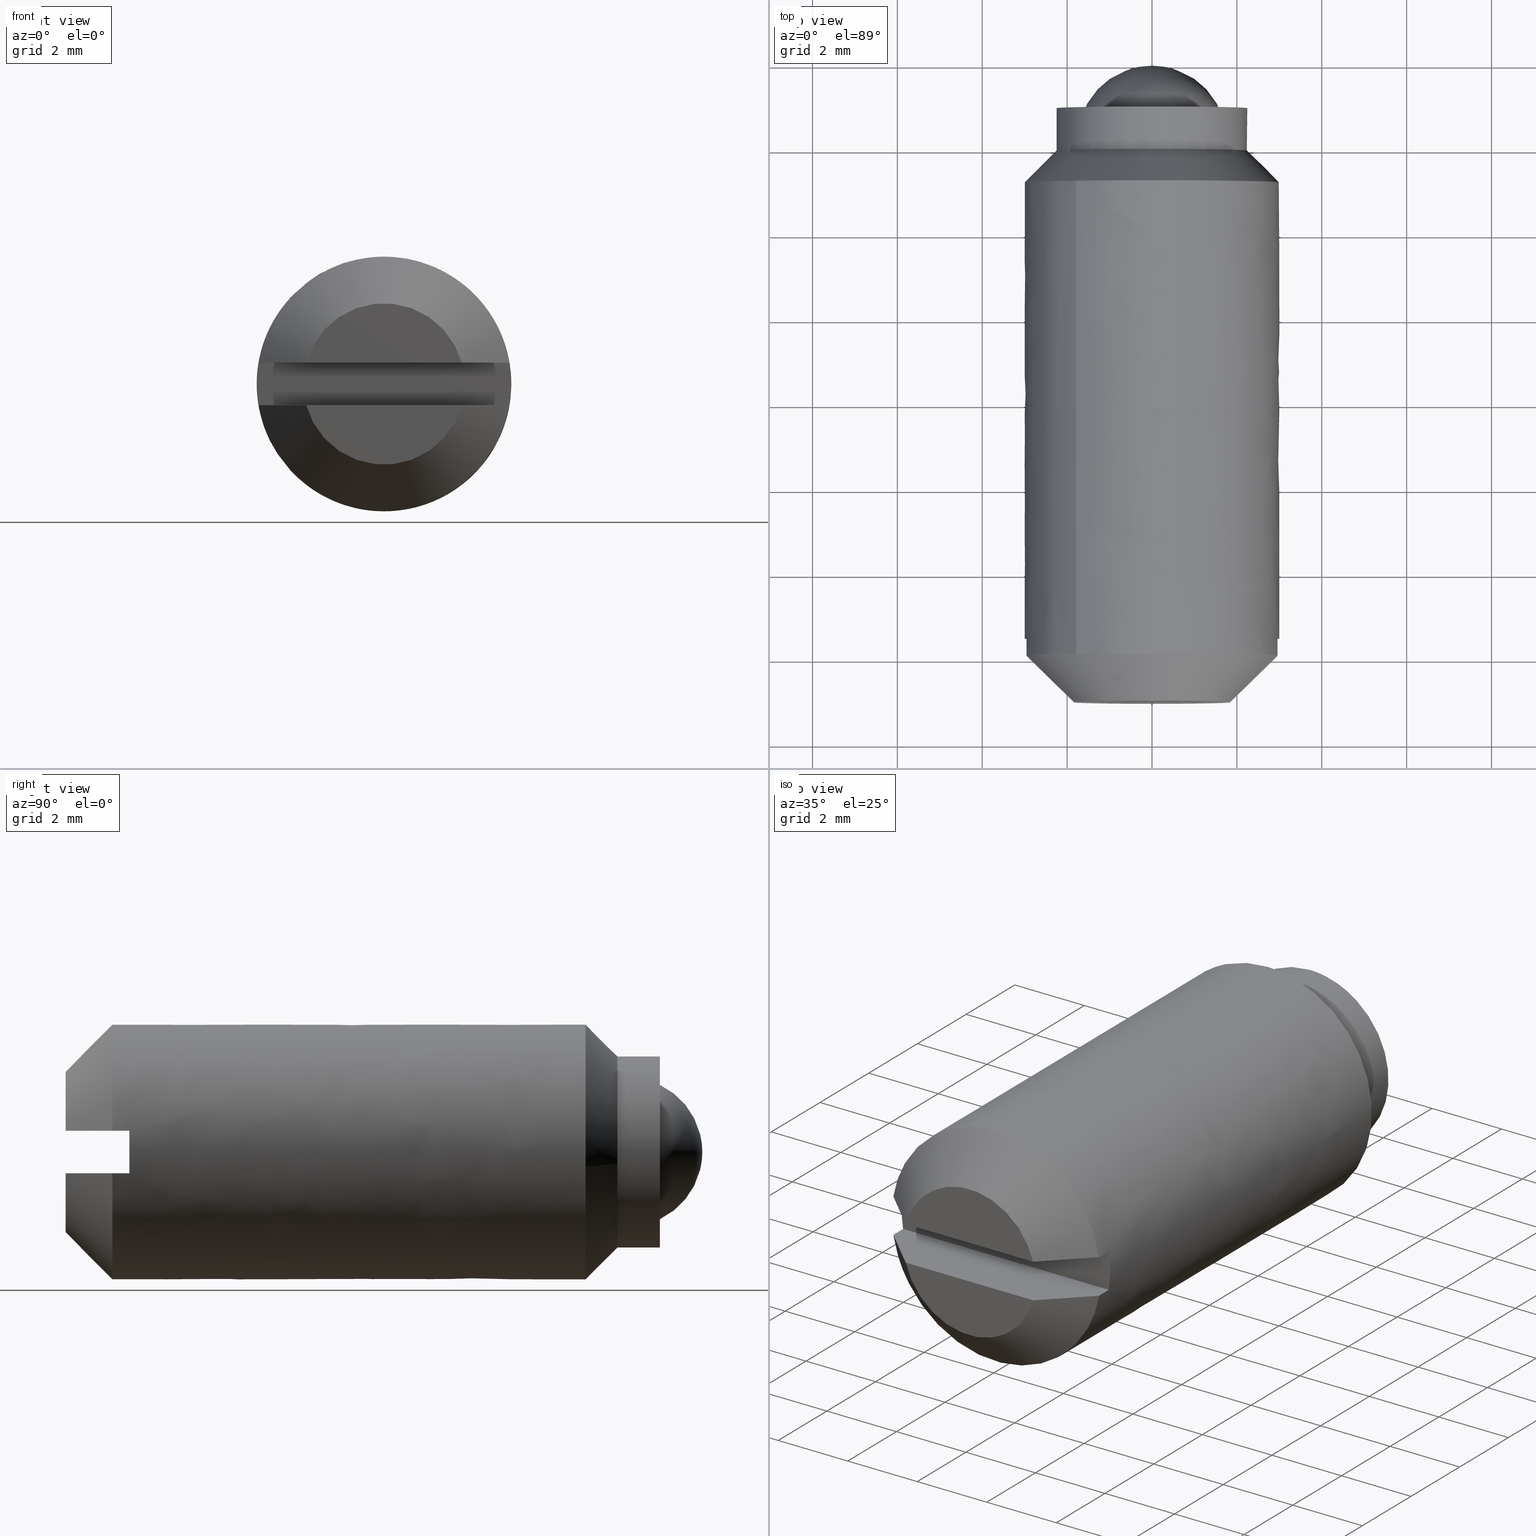
[diagram: canonical four-view strip — front | top / right | iso, engineering-drawing reading convention]
A machine part, canonical four-view strip (front | top / right | iso — engineering-drawing reading convention). The complete STEP part file that produces these views, byte-faithful:
ISO-10303-21;
HEADER;
/****************************************************************
 * Generated by software with PDE/Lib inside                    *
 * PDElib Version 4.4.1-0003, patched  Thursday August 19 11:58 *
 * International Technegroup Inc. (www.iti-oh.com)              *
 ****************************************************************/
FILE_DESCRIPTION((''),'2;1');
FILE_NAME('','2005-07-15T11:27:57',(''),(''),'','CADfix','');
FILE_SCHEMA(('AUTOMOTIVE_DESIGN'));
ENDSEC;
DATA;
#5=APPLICATION_CONTEXT('automotive design');
#6=APPLICATION_PROTOCOL_DEFINITION('Draft International Standard','automotive_design',1998,#5);
#7=PRODUCT_CONTEXT('None',#5,'mechanical');
#8=PRODUCT('body','','None',(#7));
#9=PRODUCT_RELATED_PRODUCT_CATEGORY('part','description',(#8));
#10=PRODUCT_DEFINITION_FORMATION('None','None',#8);
#11=PRODUCT_DEFINITION_CONTEXT('part definition',#5,'design');
#12=PRODUCT_DEFINITION('None','None',#10,#11);
#18=(NAMED_UNIT(*)PLANE_ANGLE_UNIT()SI_UNIT($,.RADIAN.));
#19=DIMENSIONAL_EXPONENTS(0.0,0.0,0.0,0.0,0.0,0.0,0.0);
#20=PLANE_ANGLE_MEASURE_WITH_UNIT(PLANE_ANGLE_MEASURE(0.017453292500000),#18);
#24=(CONVERSION_BASED_UNIT('DEGREE',#20)NAMED_UNIT(#19)PLANE_ANGLE_UNIT());
#28=(NAMED_UNIT(*)SI_UNIT($,.STERADIAN.)SOLID_ANGLE_UNIT());
#32=(LENGTH_UNIT()NAMED_UNIT(*)SI_UNIT(.MILLI.,.METRE.));
#34=UNCERTAINTY_MEASURE_WITH_UNIT(LENGTH_MEASURE(0.001000000000000),#32,'DISTANCE_ACCURACY_VALUE','');
#36=(GEOMETRIC_REPRESENTATION_CONTEXT(3)GLOBAL_UNCERTAINTY_ASSIGNED_CONTEXT((#34))GLOBAL_UNIT_ASSIGNED_CONTEXT((#24,#28,#32))REPRESENTATION_CONTEXT('None','None'));
#37=AXIS2_PLACEMENT_3D('',#38,#39,#40);
#38=CARTESIAN_POINT('',(0.0,0.0,0.0));
#39=DIRECTION('',(0.0,0.0,1.0));
#40=DIRECTION('',(1.0,0.0,0.0));
#41=ADVANCED_BREP_SHAPE_REPRESENTATION('',(#37,#1005,#1216),#36);
#42=PRODUCT_DEFINITION_SHAPE('','',#12);
#43=SHAPE_DEFINITION_REPRESENTATION(#42,#41);
#44=CARTESIAN_POINT('',(-1.737766671136416,-0.893750000000000,0.206559910649327));
#45=CARTESIAN_POINT('',(-1.743678327035060,-0.893750000000000,0.156825775116461));
#46=CARTESIAN_POINT('',(-1.746735897238267,-0.893750000000000,0.106834944186000));
#47=CARTESIAN_POINT('',(-1.853570841424267,-0.893750000000000,-1.639900953052267));
#48=CARTESIAN_POINT('',(-0.106834944186000,-0.893750000000000,-1.746735897238267));
#49=CARTESIAN_POINT('',(1.639900953052267,-0.893750000000000,-1.853570841424267));
#50=CARTESIAN_POINT('',(1.746735897238267,-0.893750000000000,-0.106834944186000));
#51=CARTESIAN_POINT('',(-1.737766671136416,-5.358906250000004,0.206559910649327));
#52=CARTESIAN_POINT('',(-1.743678327035060,-5.358906250000002,0.156825775116461));
#53=CARTESIAN_POINT('',(-1.746735897238267,-5.358906250000001,0.106834944186000));
#54=CARTESIAN_POINT('',(-1.853570841424267,-5.358906250000001,-1.639900953052267));
#55=CARTESIAN_POINT('',(-0.106834944186000,-5.358906250000001,-1.746735897238267));
#56=CARTESIAN_POINT('',(1.639900953052267,-5.358906250000001,-1.853570841424267));
#57=CARTESIAN_POINT('',(1.746735897238267,-5.358906250000001,-0.106834944186000));
#65=(BOUNDED_SURFACE()B_SPLINE_SURFACE(2,1,((#44,#51),(#45,#52),(#46,#53),(#47,#54),(#48,#55),(#49,#56),(#50,#57)),.UNSPECIFIED.,.F.,.F.,.U.)B_SPLINE_SURFACE_WITH_KNOTS((3,2,2,3),(2,2),(3.078760800517997,3.141592653589793,4.712388980384690,6.283185307179586),(0.0,4.465156250000002),.UNSPECIFIED.)GEOMETRIC_REPRESENTATION_ITEM()RATIONAL_B_SPLINE_SURFACE(((0.977505800795127,0.977505800795127),(0.988284271247462,0.988284271247462),(1.0,1.0),(0.707106781186548,0.707106781186548),(1.0,1.0),(0.707106781186548,0.707106781186548),(1.0,1.0)))REPRESENTATION_ITEM('')SURFACE());
#66=CARTESIAN_POINT('',(-1.737766671135633,-5.250000000000000,0.206559910655916));
#67=VERTEX_POINT('',#66);
#68=CARTESIAN_POINT('',(0.0,-5.250000000000000,-1.750000000000000));
#69=VERTEX_POINT('',#68);
#70=CARTESIAN_POINT('',(-1.737766671135633,-5.250000000000000,0.206559910655916));
#71=CARTESIAN_POINT('',(-1.750000000000000,-5.250000000000001,0.103642209397501));
#72=CARTESIAN_POINT('',(-1.750000000000000,-5.250000000000000,0.0));
#73=CARTESIAN_POINT('',(-1.750000000000000,-5.249999999999999,-1.750000000000000));
#74=CARTESIAN_POINT('',(0.0,-5.250000000000000,-1.750000000000000));
#82=(BOUNDED_CURVE()B_SPLINE_CURVE(2,(#70,#71,#72,#73,#74),.UNSPECIFIED.,.F.,.U.)B_SPLINE_CURVE_WITH_KNOTS((3,2,3),(0.229562473514363,0.250000000000000,0.500000000000000),.UNSPECIFIED.)CURVE()GEOMETRIC_REPRESENTATION_ITEM()RATIONAL_B_SPLINE_CURVE((0.956026754185374,0.976055948332146,1.0,0.707106781186547,1.0))REPRESENTATION_ITEM(''));
#83=EDGE_CURVE('',#67,#69,#82,.T.);
#84=ORIENTED_EDGE('',*,*,#83,.T.);
#85=CARTESIAN_POINT('',(1.746736020852408,-5.250000000000009,-0.106832923074280));
#86=VERTEX_POINT('',#85);
#87=CARTESIAN_POINT('',(0.0,-5.250000000000000,-1.750000000000000));
#88=CARTESIAN_POINT('',(1.646237525470331,-5.250000000000000,-1.750000000000000));
#89=CARTESIAN_POINT('',(1.746736020852408,-5.250000000000009,-0.106832923074280));
#97=(BOUNDED_CURVE()B_SPLINE_CURVE(2,(#87,#88,#89),.UNSPECIFIED.,.F.,.U.)B_SPLINE_CURVE_WITH_KNOTS((3,3),(0.500000000000000,0.739333161892294),.UNSPECIFIED.)CURVE()GEOMETRIC_REPRESENTATION_ITEM()RATIONAL_B_SPLINE_CURVE((1.0,0.719603759378259,0.976072469562228))REPRESENTATION_ITEM(''));
#98=EDGE_CURVE('',#69,#86,#97,.T.);
#99=ORIENTED_EDGE('',*,*,#98,.T.);
#100=CARTESIAN_POINT('',(1.746736019324997,-1.000000000000000,-0.106832948048172));
#101=VERTEX_POINT('',#100);
#102=CARTESIAN_POINT('',(1.746736019324997,-1.000000000000000,-0.106832948048172));
#103=CARTESIAN_POINT('',(1.746736020852408,-5.250000000000009,-0.106832923074280));
#104=QUASI_UNIFORM_CURVE('',1,(#102,#103),.UNSPECIFIED.,.F.,.U.);
#105=EDGE_CURVE('',#101,#86,#104,.T.);
#106=ORIENTED_EDGE('',*,*,#105,.F.);
#107=CARTESIAN_POINT('',(0.0,-1.0,-1.750000000000000));
#108=VERTEX_POINT('',#107);
#109=CARTESIAN_POINT('',(0.0,-1.0,-1.750000000000000));
#110=CARTESIAN_POINT('',(1.646237501889333,-1.0,-1.750000000000000));
#111=CARTESIAN_POINT('',(1.746736019324997,-1.000000000000000,-0.106832948048172));
#119=(BOUNDED_CURVE()B_SPLINE_CURVE(2,(#109,#110,#111),.UNSPECIFIED.,.F.,.U.)B_SPLINE_CURVE_WITH_KNOTS((3,3),(0.500000000000000,0.739333159425312),.UNSPECIFIED.)CURVE()GEOMETRIC_REPRESENTATION_ITEM()RATIONAL_B_SPLINE_CURVE((1.0,0.719603762268509,0.976072464275007))REPRESENTATION_ITEM(''));
#120=EDGE_CURVE('',#108,#101,#119,.T.);
#121=ORIENTED_EDGE('',*,*,#120,.F.);
#122=CARTESIAN_POINT('',(-1.737766671135633,-1.000000000000000,0.206559910655916));
#123=VERTEX_POINT('',#122);
#124=CARTESIAN_POINT('',(-1.737766671135633,-1.000000000000000,0.206559910655916));
#125=CARTESIAN_POINT('',(-1.750000000000000,-1.0,0.103642209397501));
#126=CARTESIAN_POINT('',(-1.750000000000000,-1.0,0.0));
#127=CARTESIAN_POINT('',(-1.750000000000000,-1.0,-1.750000000000000));
#128=CARTESIAN_POINT('',(0.0,-1.0,-1.750000000000000));
#136=(BOUNDED_CURVE()B_SPLINE_CURVE(2,(#124,#125,#126,#127,#128),.UNSPECIFIED.,.F.,.U.)B_SPLINE_CURVE_WITH_KNOTS((3,2,3),(0.229562473514363,0.250000000000000,0.500000000000000),.UNSPECIFIED.)CURVE()GEOMETRIC_REPRESENTATION_ITEM()RATIONAL_B_SPLINE_CURVE((0.956026754185374,0.976055948332146,1.0,0.707106781186547,1.0))REPRESENTATION_ITEM(''));
#137=EDGE_CURVE('',#123,#108,#136,.T.);
#138=ORIENTED_EDGE('',*,*,#137,.F.);
#139=CARTESIAN_POINT('',(-1.737766671135633,-1.000000000000000,0.206559910655916));
#140=CARTESIAN_POINT('',(-1.737766671135633,-5.250000000000000,0.206559910655916));
#141=QUASI_UNIFORM_CURVE('',1,(#139,#140),.UNSPECIFIED.,.F.,.U.);
#142=EDGE_CURVE('',#123,#67,#141,.T.);
#143=ORIENTED_EDGE('',*,*,#142,.T.);
#144=EDGE_LOOP('',(#84,#99,#106,#121,#138,#143));
#145=FACE_OUTER_BOUND('',#144,.T.);
#146=ADVANCED_FACE('',(#145),#65,.F.);
#147=CARTESIAN_POINT('',(1.746735897238267,-0.893750000000000,-0.106834944186000));
#148=CARTESIAN_POINT('',(1.853570841424267,-0.893750000000000,1.639900953052267));
#149=CARTESIAN_POINT('',(0.106834944186000,-0.893750000000000,1.746735897238267));
#150=CARTESIAN_POINT('',(-1.542701108969127,-0.893750000000000,1.847625844281923));
#151=CARTESIAN_POINT('',(-1.737766671136416,-0.893750000000000,0.206559910649327));
#152=CARTESIAN_POINT('',(1.746735897238267,-5.358906250000001,-0.106834944186000));
#153=CARTESIAN_POINT('',(1.853570841424267,-5.358906250000001,1.639900953052267));
#154=CARTESIAN_POINT('',(0.106834944186000,-5.358906250000001,1.746735897238267));
#155=CARTESIAN_POINT('',(-1.542701108969127,-5.358906250000000,1.847625844281923));
#156=CARTESIAN_POINT('',(-1.737766671136416,-5.358906250000004,0.206559910649327));
#164=(BOUNDED_SURFACE()B_SPLINE_SURFACE(2,1,((#147,#152),(#148,#153),(#149,#154),(#150,#155),(#151,#156)),.UNSPECIFIED.,.F.,.F.,.U.)B_SPLINE_SURFACE_WITH_KNOTS((3,2,3),(2,2),(0.0,1.570796326794897,3.078760800517997),(0.0,4.465156250000002),.UNSPECIFIED.)GEOMETRIC_REPRESENTATION_ITEM()RATIONAL_B_SPLINE_SURFACE(((1.0,1.0),(0.707106781186548,0.707106781186548),(1.0,1.0),(0.718822509939086,0.718822509939086),(0.977505800795127,0.977505800795127)))REPRESENTATION_ITEM('')SURFACE());
#165=CARTESIAN_POINT('',(0.0,-5.250000000000000,1.750000000000000));
#166=VERTEX_POINT('',#165);
#167=CARTESIAN_POINT('',(0.0,-5.250000000000000,1.750000000000000));
#168=CARTESIAN_POINT('',(-1.554305420403023,-5.250000000000000,1.750000000000000));
#169=CARTESIAN_POINT('',(-1.737766671135633,-5.250000000000001,0.206559910655916));
#177=(BOUNDED_CURVE()B_SPLINE_CURVE(2,(#167,#168,#169),.UNSPECIFIED.,.F.,.U.)B_SPLINE_CURVE_WITH_KNOTS((3,3),(0.0,0.229562473514363),.UNSPECIFIED.)CURVE()GEOMETRIC_REPRESENTATION_ITEM()RATIONAL_B_SPLINE_CURVE((1.0,0.731050832854402,0.956026754185374))REPRESENTATION_ITEM(''));
#178=EDGE_CURVE('',#166,#67,#177,.T.);
#179=ORIENTED_EDGE('',*,*,#178,.T.);
#180=ORIENTED_EDGE('',*,*,#142,.F.);
#181=CARTESIAN_POINT('',(0.0,-1.0,1.750000000000000));
#182=VERTEX_POINT('',#181);
#183=CARTESIAN_POINT('',(0.0,-1.0,1.750000000000000));
#184=CARTESIAN_POINT('',(-1.554305420403023,-1.0,1.750000000000000));
#185=CARTESIAN_POINT('',(-1.737766671135633,-1.000000000000000,0.206559910655916));
#193=(BOUNDED_CURVE()B_SPLINE_CURVE(2,(#183,#184,#185),.UNSPECIFIED.,.F.,.U.)B_SPLINE_CURVE_WITH_KNOTS((3,3),(0.0,0.229562473514363),.UNSPECIFIED.)CURVE()GEOMETRIC_REPRESENTATION_ITEM()RATIONAL_B_SPLINE_CURVE((1.0,0.731050832854402,0.956026754185374))REPRESENTATION_ITEM(''));
#194=EDGE_CURVE('',#182,#123,#193,.T.);
#195=ORIENTED_EDGE('',*,*,#194,.F.);
#196=CARTESIAN_POINT('',(1.746736019324997,-1.000000000000000,-0.106832948048172));
#197=CARTESIAN_POINT('',(1.750000000000000,-1.0,-0.053466334905216));
#198=CARTESIAN_POINT('',(1.750000000000000,-1.0,0.0));
#199=CARTESIAN_POINT('',(1.750000000000000,-1.0,1.750000000000000));
#200=CARTESIAN_POINT('',(0.0,-1.0,1.750000000000000));
#208=(BOUNDED_CURVE()B_SPLINE_CURVE(2,(#196,#197,#198,#199,#200),.UNSPECIFIED.,.F.,.U.)B_SPLINE_CURVE_WITH_KNOTS((3,2,3),(0.739333159425312,0.750000000000000,1.0),.UNSPECIFIED.)CURVE()GEOMETRIC_REPRESENTATION_ITEM()RATIONAL_B_SPLINE_CURVE((0.976072464275007,0.987503018918039,1.0,0.707106781186547,1.0))REPRESENTATION_ITEM(''));
#209=EDGE_CURVE('',#101,#182,#208,.T.);
#210=ORIENTED_EDGE('',*,*,#209,.F.);
#211=ORIENTED_EDGE('',*,*,#105,.T.);
#212=CARTESIAN_POINT('',(1.746736020852408,-5.250000000000009,-0.106832923074280));
#213=CARTESIAN_POINT('',(1.750000000000000,-5.250000000000000,-0.053466322383260));
#214=CARTESIAN_POINT('',(1.750000000000000,-5.250000000000000,0.0));
#215=CARTESIAN_POINT('',(1.750000000000000,-5.249999999999999,1.750000000000000));
#216=CARTESIAN_POINT('',(0.0,-5.250000000000000,1.750000000000000));
#224=(BOUNDED_CURVE()B_SPLINE_CURVE(2,(#212,#213,#214,#215,#216),.UNSPECIFIED.,.F.,.U.)B_SPLINE_CURVE_WITH_KNOTS((3,2,3),(0.739333161892294,0.750000000000000,1.0),.UNSPECIFIED.)CURVE()GEOMETRIC_REPRESENTATION_ITEM()RATIONAL_B_SPLINE_CURVE((0.976072469562228,0.987503021808288,1.0,0.707106781186547,1.0))REPRESENTATION_ITEM(''));
#225=EDGE_CURVE('',#86,#166,#224,.T.);
#226=ORIENTED_EDGE('',*,*,#225,.T.);
#227=EDGE_LOOP('',(#179,#180,#195,#210,#211,#226));
#228=FACE_OUTER_BOUND('',#227,.T.);
#229=ADVANCED_FACE('',(#228),#164,.F.);
#230=CARTESIAN_POINT('',(0.810907582264825,-0.975000000000000,2.098898462854327));
#231=CARTESIAN_POINT('',(0.801012499757938,-0.975000000000000,2.102615081700397));
#232=CARTESIAN_POINT('',(0.474726266359669,-0.975000000000000,2.225169043571588));
#233=CARTESIAN_POINT('',(0.137359213953428,-0.975000000000000,2.245803296449199));
#234=CARTESIAN_POINT('',(-2.108444082495772,-0.975000000000000,2.383162510402627));
#235=CARTESIAN_POINT('',(-2.246385166074939,-0.975000000000000,0.127845729666670));
#236=CARTESIAN_POINT('',(-2.246964997314255,-0.975000000000000,0.118365572703307));
#237=CARTESIAN_POINT('',(0.810907582264825,-2.025625000000000,2.098898462854327));
#238=CARTESIAN_POINT('',(0.801012499757938,-2.025625000000000,2.102615081700397));
#239=CARTESIAN_POINT('',(0.474726266359669,-2.025625000000000,2.225169043571588));
#240=CARTESIAN_POINT('',(0.137359213953428,-2.025625000000000,2.245803296449199));
#241=CARTESIAN_POINT('',(-2.108444082495772,-2.025624999999999,2.383162510402627));
#242=CARTESIAN_POINT('',(-2.246385166074939,-2.025624999999999,0.127845729666670));
#243=CARTESIAN_POINT('',(-2.246964997314255,-2.025624999999999,0.118365572703307));
#251=(BOUNDED_SURFACE()B_SPLINE_SURFACE(2,1,((#230,#237),(#231,#238),(#232,#239),(#233,#240),(#234,#241),(#235,#242),(#236,#243)),.UNSPECIFIED.,.F.,.F.,.U.)B_SPLINE_SURFACE_WITH_KNOTS((3,1,2,1,3),(2,2),(0.0,0.022367556049708,0.767951968321279,4.495874029679133,4.518246421630407),(0.0,1.0),.UNSPECIFIED.)GEOMETRIC_REPRESENTATION_ITEM()RATIONAL_B_SPLINE_SURFACE(((0.904165336571519,0.904165336571519),(0.905219753275607,0.905219753275607),(0.941421356237309,0.941421356237309),(1.0,1.0),(0.707106781186548,0.707106781186548),(1.001757741117790,1.001757741117790),(1.003515482235580,1.003515482235580)))REPRESENTATION_ITEM('')SURFACE());
#252=CARTESIAN_POINT('',(0.791140442382787,-2.0,2.106323052246821));
#253=VERTEX_POINT('',#252);
#254=CARTESIAN_POINT('',(0.0,-2.0,2.249999999999999));
#255=VERTEX_POINT('',#254);
#256=CARTESIAN_POINT('',(0.791140442382787,-2.000000000000000,2.106323052246821));
#257=CARTESIAN_POINT('',(0.408616618652142,-2.000000000000000,2.249999999999999));
#258=CARTESIAN_POINT('',(0.0,-2.0,2.249999999999999));
#266=(BOUNDED_CURVE()B_SPLINE_CURVE(2,(#256,#257,#258),.UNSPECIFIED.,.F.,.U.)B_SPLINE_CURVE_WITH_KNOTS((3,3),(0.440284170898647,0.500000000000000),.UNSPECIFIED.)CURVE()GEOMETRIC_REPRESENTATION_ITEM()RATIONAL_B_SPLINE_CURVE((0.893499554635445,0.930038554401563,1.0))REPRESENTATION_ITEM(''));
#267=EDGE_CURVE('',#253,#255,#266,.T.);
#268=ORIENTED_EDGE('',*,*,#267,.F.);
#269=CARTESIAN_POINT('',(0.791138014913889,-1.0,2.106323964007289));
#270=VERTEX_POINT('',#269);
#271=CARTESIAN_POINT('',(0.791138014913889,-1.0,2.106323964007289));
#272=CARTESIAN_POINT('',(0.791140442382787,-2.0,2.106323052246821));
#273=QUASI_UNIFORM_CURVE('',1,(#271,#272),.UNSPECIFIED.,.F.,.U.);
#274=EDGE_CURVE('',#270,#253,#273,.T.);
#275=ORIENTED_EDGE('',*,*,#274,.F.);
#276=CARTESIAN_POINT('',(0.0,-1.0,2.249999999999999));
#277=VERTEX_POINT('',#276);
#278=CARTESIAN_POINT('',(0.791138014913889,-1.0,2.106323964007289));
#279=CARTESIAN_POINT('',(0.408615279364903,-1.0,2.250000000000000));
#280=CARTESIAN_POINT('',(0.0,-1.0,2.249999999999999));
#288=(BOUNDED_CURVE()B_SPLINE_CURVE(2,(#278,#279,#280),.UNSPECIFIED.,.F.,.U.)B_SPLINE_CURVE_WITH_KNOTS((3,3),(0.440284352930849,0.500000000000000),.UNSPECIFIED.)CURVE()GEOMETRIC_REPRESENTATION_ITEM()RATIONAL_B_SPLINE_CURVE((0.893499777399960,0.930038767665553,1.0))REPRESENTATION_ITEM(''));
#289=EDGE_CURVE('',#270,#277,#288,.T.);
#290=ORIENTED_EDGE('',*,*,#289,.T.);
#291=CARTESIAN_POINT('',(-2.245803548431797,-1.0,0.137355093950345));
#292=VERTEX_POINT('',#291);
#293=CARTESIAN_POINT('',(0.0,-1.0,2.249999999999999));
#294=CARTESIAN_POINT('',(-2.116592540751148,-1.0,2.249999999999999));
#295=CARTESIAN_POINT('',(-2.245803548431797,-1.0,0.137355093950345));
#303=(BOUNDED_CURVE()B_SPLINE_CURVE(2,(#293,#294,#295),.UNSPECIFIED.,.F.,.U.)B_SPLINE_CURVE_WITH_KNOTS((3,3),(0.500000000000000,0.739333278785040),.UNSPECIFIED.)CURVE()GEOMETRIC_REPRESENTATION_ITEM()RATIONAL_B_SPLINE_CURVE((1.0,0.719603622429889,0.976072720086199))REPRESENTATION_ITEM(''));
#304=EDGE_CURVE('',#277,#292,#303,.T.);
#305=ORIENTED_EDGE('',*,*,#304,.T.);
#306=CARTESIAN_POINT('',(-2.245803296450222,-2.000000000004009,0.137359213967844));
#307=VERTEX_POINT('',#306);
#308=CARTESIAN_POINT('',(-2.245803548431797,-1.0,0.137355093950345));
#309=CARTESIAN_POINT('',(-2.245803296450222,-2.000000000004009,0.137359213967844));
#310=QUASI_UNIFORM_CURVE('',1,(#308,#309),.UNSPECIFIED.,.F.,.U.);
#311=EDGE_CURVE('',#292,#307,#310,.T.);
#312=ORIENTED_EDGE('',*,*,#311,.T.);
#313=CARTESIAN_POINT('',(0.0,-2.0,2.249999999999999));
#314=CARTESIAN_POINT('',(-2.116588650483795,-2.000000000000000,2.250000000000000));
#315=CARTESIAN_POINT('',(-2.245803296450223,-2.000000000004009,0.137359213967844));
#323=(BOUNDED_CURVE()B_SPLINE_CURVE(2,(#313,#314,#315),.UNSPECIFIED.,.F.,.U.)B_SPLINE_CURVE_WITH_KNOTS((3,3),(0.500000000000000,0.739332962237573),.UNSPECIFIED.)CURVE()GEOMETRIC_REPRESENTATION_ITEM()RATIONAL_B_SPLINE_CURVE((1.0,0.719603993288315,0.976072041663781))REPRESENTATION_ITEM(''));
#324=EDGE_CURVE('',#255,#307,#323,.T.);
#325=ORIENTED_EDGE('',*,*,#324,.F.);
#326=EDGE_LOOP('',(#268,#275,#290,#305,#312,#325));
#327=FACE_OUTER_BOUND('',#326,.T.);
#328=ADVANCED_FACE('',(#327),#251,.T.);
#329=CARTESIAN_POINT('',(-2.245803296449200,-0.975000000000000,0.137359213953427));
#330=CARTESIAN_POINT('',(-2.383162510402629,-0.975000000000000,-2.108444082495772));
#331=CARTESIAN_POINT('',(-0.137359213953428,-0.975000000000000,-2.245803296449201));
#332=CARTESIAN_POINT('',(2.108444082495772,-0.975000000000000,-2.383162510402629));
#333=CARTESIAN_POINT('',(2.245803296449200,-0.975000000000000,-0.137359213953429));
#334=CARTESIAN_POINT('',(2.347283751456018,-0.975000000000000,1.521831559056896));
#335=CARTESIAN_POINT('',(0.791140442381037,-0.975000000000000,2.106323052247478));
#336=CARTESIAN_POINT('',(-2.245803296449200,-2.025625000000000,0.137359213953427));
#337=CARTESIAN_POINT('',(-2.383162510402629,-2.025624999999999,-2.108444082495772));
#338=CARTESIAN_POINT('',(-0.137359213953428,-2.025625000000000,-2.245803296449201));
#339=CARTESIAN_POINT('',(2.108444082495772,-2.025624999999999,-2.383162510402629));
#340=CARTESIAN_POINT('',(2.245803296449200,-2.025625000000000,-0.137359213953429));
#341=CARTESIAN_POINT('',(2.347283751456018,-2.025624999999999,1.521831559056896));
#342=CARTESIAN_POINT('',(0.791140442381037,-2.025625000000000,2.106323052247478));
#350=(BOUNDED_SURFACE()B_SPLINE_SURFACE(2,1,((#329,#336),(#330,#337),(#331,#338),(#332,#339),(#333,#340),(#334,#341),(#335,#342)),.UNSPECIFIED.,.F.,.F.,.U.)B_SPLINE_SURFACE_WITH_KNOTS((3,2,2,3),(2,2),(0.0,3.727922061357854,7.455844122715709,10.438181771801990),(0.0,1.0),.UNSPECIFIED.)GEOMETRIC_REPRESENTATION_ITEM()RATIONAL_B_SPLINE_SURFACE(((1.0,1.0),(0.707106781186548,0.707106781186548),(1.0,1.0),(0.707106781186548,0.707106781186548),(1.0,1.0),(0.765685424949238,0.765685424949238),(0.906274169979695,0.906274169979695)))REPRESENTATION_ITEM('')SURFACE());
#351=CARTESIAN_POINT('',(2.234271434318409,-2.000000000002305,-0.265577027995891));
#352=VERTEX_POINT('',#351);
#353=CARTESIAN_POINT('',(2.234271434318409,-2.000000000002306,-0.265577027995891));
#354=CARTESIAN_POINT('',(2.250000000000000,-2.000000000000000,-0.133254269234900));
#355=CARTESIAN_POINT('',(2.250000000000000,-2.0,-9.796851E-016));
#356=CARTESIAN_POINT('',(2.250000000000000,-2.000000000000000,1.558371590309681));
#357=CARTESIAN_POINT('',(0.791140442382787,-2.0,2.106323052246820));
#365=(BOUNDED_CURVE()B_SPLINE_CURVE(2,(#353,#354,#355,#356,#357),.UNSPECIFIED.,.F.,.U.)B_SPLINE_CURVE_WITH_KNOTS((3,2,3),(0.229562473512934,0.250000000000000,0.440284170898647),.UNSPECIFIED.)CURVE()GEOMETRIC_REPRESENTATION_ITEM()RATIONAL_B_SPLINE_CURVE((0.956026754182574,0.976055948330473,1.0,0.777068226784984,0.893499554635445))REPRESENTATION_ITEM(''));
#366=EDGE_CURVE('',#352,#253,#365,.T.);
#367=ORIENTED_EDGE('',*,*,#366,.F.);
#368=CARTESIAN_POINT('',(0.0,-2.0,-2.250000000000001));
#369=VERTEX_POINT('',#368);
#370=CARTESIAN_POINT('',(0.0,-2.0,-2.250000000000001));
#371=CARTESIAN_POINT('',(1.998392683358309,-2.000000000000000,-2.250000000000001));
#372=CARTESIAN_POINT('',(2.234271434318410,-2.000000000002305,-0.265577027995891));
#380=(BOUNDED_CURVE()B_SPLINE_CURVE(2,(#370,#371,#372),.UNSPECIFIED.,.F.,.U.)B_SPLINE_CURVE_WITH_KNOTS((3,3),(0.0,0.229562473512934),.UNSPECIFIED.)CURVE()GEOMETRIC_REPRESENTATION_ITEM()RATIONAL_B_SPLINE_CURVE((1.0,0.731050832856075,0.956026754182574))REPRESENTATION_ITEM(''));
#381=EDGE_CURVE('',#369,#352,#380,.T.);
#382=ORIENTED_EDGE('',*,*,#381,.F.);
#383=CARTESIAN_POINT('',(-2.245803296450222,-2.000000000004009,0.137359213967844));
#384=CARTESIAN_POINT('',(-2.250000000000000,-2.000000000000000,0.068743717450506));
#385=CARTESIAN_POINT('',(-2.250000000000000,-2.0,-9.796851E-016));
#386=CARTESIAN_POINT('',(-2.250000000000000,-2.0,-2.250000000000000));
#387=CARTESIAN_POINT('',(0.0,-2.0,-2.250000000000001));
#395=(BOUNDED_CURVE()B_SPLINE_CURVE(2,(#383,#384,#385,#386,#387),.UNSPECIFIED.,.F.,.U.)B_SPLINE_CURVE_WITH_KNOTS((3,2,3),(0.739332962237573,0.750000000000000,1.0),.UNSPECIFIED.)CURVE()GEOMETRIC_REPRESENTATION_ITEM()RATIONAL_B_SPLINE_CURVE((0.976072041663782,0.987502787898233,1.0,0.707106781186547,1.0))REPRESENTATION_ITEM(''));
#396=EDGE_CURVE('',#307,#369,#395,.T.);
#397=ORIENTED_EDGE('',*,*,#396,.F.);
#398=ORIENTED_EDGE('',*,*,#311,.F.);
#399=CARTESIAN_POINT('',(0.0,-1.0,-2.250000000000001));
#400=VERTEX_POINT('',#399);
#401=CARTESIAN_POINT('',(-2.245803548431797,-1.0,0.137355093950345));
#402=CARTESIAN_POINT('',(-2.250000000000000,-1.0,0.068741651644528));
#403=CARTESIAN_POINT('',(-2.250000000000000,-1.0,-9.796851E-016));
#404=CARTESIAN_POINT('',(-2.250000000000000,-1.0,-2.250000000000000));
#405=CARTESIAN_POINT('',(0.0,-1.0,-2.250000000000001));
#413=(BOUNDED_CURVE()B_SPLINE_CURVE(2,(#401,#402,#403,#404,#405),.UNSPECIFIED.,.F.,.U.)B_SPLINE_CURVE_WITH_KNOTS((3,2,3),(0.739333278785040,0.750000000000000,1.0),.UNSPECIFIED.)CURVE()GEOMETRIC_REPRESENTATION_ITEM()RATIONAL_B_SPLINE_CURVE((0.976072720086199,0.987503158756658,1.0,0.707106781186547,1.0))REPRESENTATION_ITEM(''));
#414=EDGE_CURVE('',#292,#400,#413,.T.);
#415=ORIENTED_EDGE('',*,*,#414,.T.);
#416=CARTESIAN_POINT('',(0.0,-1.0,-2.250000000000001));
#417=CARTESIAN_POINT('',(2.250000000000000,-1.0,-2.250000000000000));
#418=CARTESIAN_POINT('',(2.250000000000000,-1.0,-9.796851E-016));
#419=CARTESIAN_POINT('',(2.250000000000000,-1.0,1.558373508790894));
#420=CARTESIAN_POINT('',(0.791138014913889,-1.0,2.106323964007289));
#428=(BOUNDED_CURVE()B_SPLINE_CURVE(2,(#416,#417,#418,#419,#420),.UNSPECIFIED.,.F.,.U.)B_SPLINE_CURVE_WITH_KNOTS((3,2,3),(0.0,0.250000000000000,0.440284352930849),.UNSPECIFIED.)CURVE()GEOMETRIC_REPRESENTATION_ITEM()RATIONAL_B_SPLINE_CURVE((1.0,0.707106781186547,1.0,0.777068013520994,0.893499777399960))REPRESENTATION_ITEM(''));
#429=EDGE_CURVE('',#400,#270,#428,.T.);
#430=ORIENTED_EDGE('',*,*,#429,.T.);
#431=ORIENTED_EDGE('',*,*,#274,.T.);
#432=EDGE_LOOP('',(#367,#382,#397,#398,#415,#430,#431));
#433=FACE_OUTER_BOUND('',#432,.T.);
#434=ADVANCED_FACE('',(#433),#350,.T.);
#435=CARTESIAN_POINT('',(2.215652505698930,-1.981250000000000,-0.263363886077893));
#436=CARTESIAN_POINT('',(2.223189866969700,-1.981250000000000,-0.199952863273489));
#437=CARTESIAN_POINT('',(2.227088268978790,-1.981250000000000,-0.136214553837151));
#438=CARTESIAN_POINT('',(2.363302822815940,-1.981250000000000,2.090873715141639));
#439=CARTESIAN_POINT('',(0.136214553837150,-1.981250000000000,2.227088268978789));
#440=CARTESIAN_POINT('',(-2.090873715141639,-1.981250000000000,2.363302822815939));
#441=CARTESIAN_POINT('',(-2.227088268978790,-1.981250000000000,0.136214553837149));
#442=CARTESIAN_POINT('',(2.998112980925802,-2.769218750000000,-0.356371174417586));
#443=CARTESIAN_POINT('',(3.008312170830221,-2.769218750000001,-0.270566468979945));
#444=CARTESIAN_POINT('',(3.013587298422772,-2.769218750000000,-0.184318895223758));
#445=CARTESIAN_POINT('',(3.197906193646529,-2.769218750000000,2.829268403199014));
#446=CARTESIAN_POINT('',(0.184318895223757,-2.769218750000000,3.013587298422771));
#447=CARTESIAN_POINT('',(-2.829268403199015,-2.769218750000000,3.197906193646527));
#448=CARTESIAN_POINT('',(-3.013587298422772,-2.769218750000000,0.184318895223756));
#456=(BOUNDED_SURFACE()B_SPLINE_SURFACE(2,1,((#435,#442),(#436,#443),(#437,#444),(#438,#445),(#439,#446),(#440,#447),(#441,#448)),.UNSPECIFIED.,.F.,.F.,.U.)B_SPLINE_SURFACE_WITH_KNOTS((3,2,2,3),(2,2),(0.0,0.200096216643383,5.202501632727957,10.204907048812530),(0.0,1.0),.UNSPECIFIED.)GEOMETRIC_REPRESENTATION_ITEM()RATIONAL_B_SPLINE_SURFACE(((0.977505800795127,0.977505800795127),(0.988284271247462,0.988284271247462),(1.0,1.0),(0.707106781186548,0.707106781186548),(1.0,1.0),(0.707106781186548,0.707106781186548),(1.0,1.0)))REPRESENTATION_ITEM('')SURFACE());
#457=ORIENTED_EDGE('',*,*,#366,.T.);
#458=ORIENTED_EDGE('',*,*,#267,.T.);
#459=ORIENTED_EDGE('',*,*,#324,.T.);
#460=CARTESIAN_POINT('',(-2.994404395267101,-2.750000000002790,0.183145618625737));
#461=VERTEX_POINT('',#460);
#462=CARTESIAN_POINT('',(-2.245803296450222,-2.000000000004009,0.137359213967844));
#463=CARTESIAN_POINT('',(-2.994404395267101,-2.750000000002790,0.183145618625737));
#464=QUASI_UNIFORM_CURVE('',1,(#462,#463),.UNSPECIFIED.,.F.,.U.);
#465=EDGE_CURVE('',#307,#461,#464,.T.);
#466=ORIENTED_EDGE('',*,*,#465,.T.);
#467=CARTESIAN_POINT('',(-1.784467472697592,-2.750000000000000,2.411571238608357));
#468=VERTEX_POINT('',#467);
#469=CARTESIAN_POINT('',(-1.784467472697592,-2.750000000000000,2.411571238608356));
#470=CARTESIAN_POINT('',(-2.909002149701276,-2.750000000000000,1.579459990594403));
#471=CARTESIAN_POINT('',(-2.994404395267101,-2.750000000002789,0.183145618625737));
#479=(BOUNDED_CURVE()B_SPLINE_CURVE(2,(#469,#470,#471),.UNSPECIFIED.,.F.,.U.)B_SPLINE_CURVE_WITH_KNOTS((3,3),(0.602574061870398,0.739332962239549),.UNSPECIFIED.)CURVE()GEOMETRIC_REPRESENTATION_ITEM()RATIONAL_B_SPLINE_CURVE((0.858267075351934,0.829521863421190,0.976072041668018))REPRESENTATION_ITEM(''));
#480=EDGE_CURVE('',#468,#461,#479,.T.);
#481=ORIENTED_EDGE('',*,*,#480,.F.);
#482=CARTESIAN_POINT('',(0.0,-2.750000000000000,2.999999999999999));
#483=VERTEX_POINT('',#482);
#484=CARTESIAN_POINT('',(0.0,-2.750000000000000,2.999999999999999));
#485=CARTESIAN_POINT('',(-0.989251029331300,-2.750000000000000,2.999999999999999));
#486=CARTESIAN_POINT('',(-1.784467472697592,-2.750000000000000,2.411571238608356));
#494=(BOUNDED_CURVE()B_SPLINE_CURVE(2,(#484,#485,#486),.UNSPECIFIED.,.F.,.U.)B_SPLINE_CURVE_WITH_KNOTS((3,3),(0.500000000000000,0.602574061870398),.UNSPECIFIED.)CURVE()GEOMETRIC_REPRESENTATION_ITEM()RATIONAL_B_SPLINE_CURVE((1.0,0.879827011408036,0.858267075351934))REPRESENTATION_ITEM(''));
#495=EDGE_CURVE('',#483,#468,#494,.T.);
#496=ORIENTED_EDGE('',*,*,#495,.F.);
#497=CARTESIAN_POINT('',(2.979028579091096,-2.750000000001402,-0.354102703981332));
#498=VERTEX_POINT('',#497);
#499=CARTESIAN_POINT('',(2.979028579091097,-2.750000000001402,-0.354102703981332));
#500=CARTESIAN_POINT('',(3.000000000000001,-2.750000000000000,-0.177672358966736));
#501=CARTESIAN_POINT('',(3.0,-2.750000000000000,-9.796851E-016));
#502=CARTESIAN_POINT('',(3.0,-2.750000000000000,2.999999999999999));
#503=CARTESIAN_POINT('',(0.0,-2.750000000000000,2.999999999999999));
#511=(BOUNDED_CURVE()B_SPLINE_CURVE(2,(#499,#500,#501,#502,#503),.UNSPECIFIED.,.F.,.U.)B_SPLINE_CURVE_WITH_KNOTS((3,2,3),(0.229562473514409,0.250000000000000,0.500000000000000),.UNSPECIFIED.)CURVE()GEOMETRIC_REPRESENTATION_ITEM()RATIONAL_B_SPLINE_CURVE((0.956026754185464,0.976055948332200,1.0,0.707106781186548,1.0))REPRESENTATION_ITEM(''));
#512=EDGE_CURVE('',#498,#483,#511,.T.);
#513=ORIENTED_EDGE('',*,*,#512,.F.);
#514=CARTESIAN_POINT('',(2.234271434318409,-2.000000000002305,-0.265577027995891));
#515=CARTESIAN_POINT('',(2.979028579091096,-2.750000000001402,-0.354102703981332));
#516=QUASI_UNIFORM_CURVE('',1,(#514,#515),.UNSPECIFIED.,.F.,.U.);
#517=EDGE_CURVE('',#352,#498,#516,.T.);
#518=ORIENTED_EDGE('',*,*,#517,.F.);
#519=EDGE_LOOP('',(#457,#458,#459,#466,#481,#496,#513,#518));
#520=FACE_OUTER_BOUND('',#519,.T.);
#521=ADVANCED_FACE('',(#520),#456,.T.);
#522=CARTESIAN_POINT('',(-2.227088268978790,-1.981250000000000,0.136214553837149));
#523=CARTESIAN_POINT('',(-2.363302822815940,-1.981250000000000,-2.090873715141641));
#524=CARTESIAN_POINT('',(-0.136214553837150,-1.981250000000000,-2.227088268978791));
#525=CARTESIAN_POINT('',(1.966943913935636,-1.981250000000001,-2.355722951459453));
#526=CARTESIAN_POINT('',(2.215652505698930,-1.981250000000000,-0.263363886077893));
#527=CARTESIAN_POINT('',(-3.013587298422772,-2.769218750000000,0.184318895223756));
#528=CARTESIAN_POINT('',(-3.197906193646529,-2.769218750000000,-2.829268403199017));
#529=CARTESIAN_POINT('',(-0.184318895223757,-2.769218750000000,-3.013587298422773));
#530=CARTESIAN_POINT('',(2.661572636483076,-2.769218750000001,-3.187649481166037));
#531=CARTESIAN_POINT('',(2.998112980925802,-2.769218750000000,-0.356371174417586));
#539=(BOUNDED_SURFACE()B_SPLINE_SURFACE(2,1,((#522,#527),(#523,#528),(#524,#529),(#525,#530),(#526,#531)),.UNSPECIFIED.,.F.,.F.,.U.)B_SPLINE_SURFACE_WITH_KNOTS((3,2,3),(2,2),(0.0,5.002405416084574,9.804714615525764),(0.0,1.0),.UNSPECIFIED.)GEOMETRIC_REPRESENTATION_ITEM()RATIONAL_B_SPLINE_SURFACE(((1.0,1.0),(0.707106781186548,0.707106781186548),(1.0,1.0),(0.718822509939086,0.718822509939086),(0.977505800795127,0.977505800795127)))REPRESENTATION_ITEM('')SURFACE());
#540=ORIENTED_EDGE('',*,*,#381,.T.);
#541=ORIENTED_EDGE('',*,*,#517,.T.);
#542=CARTESIAN_POINT('',(0.0,-2.750000000000000,-3.000000000000001));
#543=VERTEX_POINT('',#542);
#544=CARTESIAN_POINT('',(0.0,-2.750000000000000,-3.000000000000001));
#545=CARTESIAN_POINT('',(2.664523577834485,-2.750000000000000,-3.000000000000001));
#546=CARTESIAN_POINT('',(2.979028579091097,-2.750000000001402,-0.354102703981332));
#554=(BOUNDED_CURVE()B_SPLINE_CURVE(2,(#544,#545,#546),.UNSPECIFIED.,.F.,.U.)B_SPLINE_CURVE_WITH_KNOTS((3,3),(0.0,0.229562473514409),.UNSPECIFIED.)CURVE()GEOMETRIC_REPRESENTATION_ITEM()RATIONAL_B_SPLINE_CURVE((1.0,0.731050832854348,0.956026754185464))REPRESENTATION_ITEM(''));
#555=EDGE_CURVE('',#543,#498,#554,.T.);
#556=ORIENTED_EDGE('',*,*,#555,.F.);
#557=CARTESIAN_POINT('',(-2.509681558042595,-2.749999999999988,-1.643623581365348));
#558=VERTEX_POINT('',#557);
#559=CARTESIAN_POINT('',(-2.509681558042595,-2.749999999999987,-1.643623581365348));
#560=CARTESIAN_POINT('',(-1.621373253695192,-2.750000000000000,-3.000000000000002));
#561=CARTESIAN_POINT('',(0.0,-2.750000000000000,-3.000000000000001));
#569=(BOUNDED_CURVE()B_SPLINE_CURVE(2,(#559,#560,#561),.UNSPECIFIED.,.F.,.U.)B_SPLINE_CURVE_WITH_KNOTS((3,3),(0.843871112190330,1.0),.UNSPECIFIED.)CURVE()GEOMETRIC_REPRESENTATION_ITEM()RATIONAL_B_SPLINE_CURVE((0.862635495281240,0.817083629998645,1.0))REPRESENTATION_ITEM(''));
#570=EDGE_CURVE('',#558,#543,#569,.T.);
#571=ORIENTED_EDGE('',*,*,#570,.F.);
#572=CARTESIAN_POINT('',(-2.994404395267102,-2.750000000002790,0.183145618625737));
#573=CARTESIAN_POINT('',(-3.000000000000000,-2.750000000000000,0.091658289916822));
#574=CARTESIAN_POINT('',(-3.0,-2.750000000000000,-9.796851E-016));
#575=CARTESIAN_POINT('',(-3.0,-2.750000000000000,-0.894946158180894));
#576=CARTESIAN_POINT('',(-2.509681558042595,-2.749999999999987,-1.643623581365348));
#584=(BOUNDED_CURVE()B_SPLINE_CURVE(2,(#572,#573,#574,#575,#576),.UNSPECIFIED.,.F.,.U.)B_SPLINE_CURVE_WITH_KNOTS((3,2,3),(0.739332962239548,0.750000000000000,0.843871112190330),.UNSPECIFIED.)CURVE()GEOMETRIC_REPRESENTATION_ITEM()RATIONAL_B_SPLINE_CURVE((0.976072041668016,0.987502787900547,1.0,0.890023151187902,0.862635495281240))REPRESENTATION_ITEM(''));
#585=EDGE_CURVE('',#461,#558,#584,.T.);
#586=ORIENTED_EDGE('',*,*,#585,.F.);
#587=ORIENTED_EDGE('',*,*,#465,.F.);
#588=ORIENTED_EDGE('',*,*,#396,.T.);
#589=EDGE_LOOP('',(#540,#541,#556,#571,#586,#587,#588));
#590=FACE_OUTER_BOUND('',#589,.T.);
#591=ADVANCED_FACE('',(#590),#539,.T.);
#592=CARTESIAN_POINT('',(-2.509681119573877,-2.471250000000000,-1.643624250871958));
#593=CARTESIAN_POINT('',(-2.462641299662661,-2.471250000000000,-1.715450246282227));
#594=CARTESIAN_POINT('',(-2.411570581851651,-2.471250000000000,-1.784468360254025));
#595=CARTESIAN_POINT('',(-0.627102221597627,-2.471249999999999,-4.196038942105676));
#596=CARTESIAN_POINT('',(1.784468360254024,-2.471250000000000,-2.411570581851652));
#597=CARTESIAN_POINT('',(4.196038942105675,-2.471249999999999,-0.627102221597628));
#598=CARTESIAN_POINT('',(2.411570581851651,-2.471250000000000,1.784468360254023));
#599=CARTESIAN_POINT('',(0.627102221597627,-2.471249999999999,4.196038942105675));
#600=CARTESIAN_POINT('',(-1.784468360254024,-2.471250000000000,2.411570581851650));
#601=CARTESIAN_POINT('',(-2.509681119573877,-14.185718750000007,-1.643624250871958));
#602=CARTESIAN_POINT('',(-2.462641299662661,-14.185718750000003,-1.715450246282227));
#603=CARTESIAN_POINT('',(-2.411570581851651,-14.185718749999999,-1.784468360254025));
#604=CARTESIAN_POINT('',(-0.627102221597627,-14.185718750000007,-4.196038942105676));
#605=CARTESIAN_POINT('',(1.784468360254024,-14.185718749999999,-2.411570581851652));
#606=CARTESIAN_POINT('',(4.196038942105675,-14.185718750000007,-0.627102221597628));
#607=CARTESIAN_POINT('',(2.411570581851651,-14.185718749999999,1.784468360254023));
#608=CARTESIAN_POINT('',(0.627102221597627,-14.185718750000007,4.196038942105675));
#609=CARTESIAN_POINT('',(-1.784468360254024,-14.185718749999999,2.411570581851650));
#617=(BOUNDED_SURFACE()B_SPLINE_SURFACE(2,1,((#592,#601),(#593,#602),(#594,#603),(#595,#604),(#596,#605),(#597,#606),(#598,#607),(#599,#608),(#600,#609)),.UNSPECIFIED.,.F.,.F.,.U.)B_SPLINE_SURFACE_WITH_KNOTS((3,2,2,2,3),(2,2),(0.0,0.198822509939086,5.169385258416225,10.139948006893359,15.110510755370500),(0.0,11.714468750000000),.UNSPECIFIED.)GEOMETRIC_REPRESENTATION_ITEM()RATIONAL_B_SPLINE_SURFACE(((0.977505800795127,0.977505800795127),(0.988284271247462,0.988284271247462),(1.0,1.0),(0.707106781186548,0.707106781186548),(1.0,1.0),(0.707106781186548,0.707106781186548),(1.0,1.0),(0.707106781186548,0.707106781186548),(1.0,1.0)))REPRESENTATION_ITEM('')SURFACE());
#618=ORIENTED_EDGE('',*,*,#570,.T.);
#619=ORIENTED_EDGE('',*,*,#555,.T.);
#620=ORIENTED_EDGE('',*,*,#512,.T.);
#621=ORIENTED_EDGE('',*,*,#495,.T.);
#622=CARTESIAN_POINT('',(-1.784468027591534,-13.900000000000000,2.411570828008873));
#623=VERTEX_POINT('',#622);
#624=CARTESIAN_POINT('',(-1.784467472697592,-2.750000000000000,2.411571238608357));
#625=CARTESIAN_POINT('',(-1.784468027591534,-13.900000000000000,2.411570828008873));
#626=QUASI_UNIFORM_CURVE('',1,(#624,#625),.UNSPECIFIED.,.F.,.U.);
#627=EDGE_CURVE('',#468,#623,#626,.T.);
#628=ORIENTED_EDGE('',*,*,#627,.T.);
#629=CARTESIAN_POINT('',(2.958040000000000,-13.899999893066660,0.500000000000000));
#630=VERTEX_POINT('',#629);
#631=CARTESIAN_POINT('',(2.958040000000000,-13.899999893066660,0.500000000000000));
#632=CARTESIAN_POINT('',(2.535462780969507,-13.899999999999997,2.999999992361905));
#633=CARTESIAN_POINT('',(9.037515E-009,-13.900000000000000,2.999999999999999));
#634=CARTESIAN_POINT('',(-0.989251178562311,-13.899999999999997,3.000000002980124));
#635=CARTESIAN_POINT('',(-1.784468027591534,-13.900000000000000,2.411570828008873));
#643=(BOUNDED_CURVE()B_SPLINE_CURVE(2,(#631,#632,#633,#634,#635),.UNSPECIFIED.,.F.,.U.)B_SPLINE_CURVE_WITH_KNOTS((3,2,3),(0.0,0.500000000000000,0.727918127711953),.UNSPECIFIED.)CURVE()GEOMETRIC_REPRESENTATION_ITEM()RATIONAL_B_SPLINE_CURVE((1.0,0.763762614853692,1.0,0.892314434963772,0.882802839386187))REPRESENTATION_ITEM(''));
#644=EDGE_CURVE('',#630,#623,#643,.T.);
#645=ORIENTED_EDGE('',*,*,#644,.F.);
#646=CARTESIAN_POINT('',(2.958040000000000,-13.500000000000000,0.500000000000000));
#647=VERTEX_POINT('',#646);
#648=CARTESIAN_POINT('',(2.958040000000000,-13.500000000000000,0.500000000000000));
#649=CARTESIAN_POINT('',(2.958040000000000,-13.899999893066660,0.500000000000000));
#650=QUASI_UNIFORM_CURVE('',1,(#648,#649),.UNSPECIFIED.,.F.,.U.);
#651=EDGE_CURVE('',#647,#630,#650,.T.);
#652=ORIENTED_EDGE('',*,*,#651,.F.);
#653=CARTESIAN_POINT('',(2.958040000000000,-13.500000000000000,-0.500000000000000));
#654=VERTEX_POINT('',#653);
#655=CARTESIAN_POINT('',(2.958040000000000,-13.500000000000000,-0.500000000000000));
#656=CARTESIAN_POINT('',(3.042555313924083,-13.500000000000000,2.168404E-016));
#657=CARTESIAN_POINT('',(2.958040000000000,-13.500000000000000,0.500000000000000));
#665=(BOUNDED_CURVE()B_SPLINE_CURVE(2,(#655,#656,#657),.UNSPECIFIED.,.F.,.U.)CURVE()GEOMETRIC_REPRESENTATION_ITEM()QUASI_UNIFORM_CURVE()RATIONAL_B_SPLINE_CURVE((1.0,0.986013298187438,1.0))REPRESENTATION_ITEM(''));
#666=EDGE_CURVE('',#654,#647,#665,.T.);
#667=ORIENTED_EDGE('',*,*,#666,.F.);
#668=CARTESIAN_POINT('',(2.958040000000000,-13.899999893066660,-0.500000000000000));
#669=VERTEX_POINT('',#668);
#670=CARTESIAN_POINT('',(2.958040000000000,-13.500000000000000,-0.500000000000000));
#671=CARTESIAN_POINT('',(2.958040000000000,-13.899999893066660,-0.500000000000000));
#672=QUASI_UNIFORM_CURVE('',1,(#670,#671),.UNSPECIFIED.,.F.,.U.);
#673=EDGE_CURVE('',#654,#669,#672,.T.);
#674=ORIENTED_EDGE('',*,*,#673,.T.);
#675=CARTESIAN_POINT('',(-2.509682359129347,-13.899999941982850,-1.643622406676921));
#676=VERTEX_POINT('',#675);
#677=CARTESIAN_POINT('',(-2.509682359129347,-13.899999941982850,-1.643622406676921));
#678=CARTESIAN_POINT('',(-1.621373640052237,-13.900000000000006,-3.000000000000001));
#679=CARTESIAN_POINT('',(0.0,-13.900000000000000,-3.000000000000001));
#680=CARTESIAN_POINT('',(2.535462779678432,-13.899999999999997,-3.000000000000002));
#681=CARTESIAN_POINT('',(2.958040000000000,-13.899999893066660,-0.500000000000000));
#689=(BOUNDED_CURVE()B_SPLINE_CURVE(2,(#677,#678,#679,#680,#681),.UNSPECIFIED.,.F.,.U.)B_SPLINE_CURVE_WITH_KNOTS((3,2,3),(0.150493827314272,0.500000000000000,1.0),.UNSPECIFIED.)CURVE()GEOMETRIC_REPRESENTATION_ITEM()RATIONAL_B_SPLINE_CURVE((0.900594101952952,0.834867150664822,1.0,0.763762613881410,1.0))REPRESENTATION_ITEM(''));
#690=EDGE_CURVE('',#676,#669,#689,.T.);
#691=ORIENTED_EDGE('',*,*,#690,.F.);
#692=CARTESIAN_POINT('',(-2.509681558042595,-2.749999999999988,-1.643623581365348));
#693=CARTESIAN_POINT('',(-2.509682359129347,-13.899999941982850,-1.643622406676921));
#694=QUASI_UNIFORM_CURVE('',1,(#692,#693),.UNSPECIFIED.,.F.,.U.);
#695=EDGE_CURVE('',#558,#676,#694,.T.);
#696=ORIENTED_EDGE('',*,*,#695,.F.);
#697=EDGE_LOOP('',(#618,#619,#620,#621,#628,#645,#652,#667,#674,#691,#696));
#698=FACE_OUTER_BOUND('',#697,.T.);
#699=ADVANCED_FACE('',(#698),#617,.T.);
#700=CARTESIAN_POINT('',(-1.784468360254024,-2.471250000000000,2.411570581851650));
#701=CARTESIAN_POINT('',(-4.061843334789147,-2.471249999999999,0.726401747451665));
#702=CARTESIAN_POINT('',(-2.509681119573877,-2.471250000000000,-1.643624250871958));
#703=CARTESIAN_POINT('',(-1.784468360254024,-14.185718749999999,2.411570581851650));
#704=CARTESIAN_POINT('',(-4.061843334789147,-14.185718750000001,0.726401747451665));
#705=CARTESIAN_POINT('',(-2.509681119573877,-14.185718750000007,-1.643624250871958));
#713=(BOUNDED_SURFACE()B_SPLINE_SURFACE(2,1,((#700,#703),(#701,#704),(#702,#705)),.UNSPECIFIED.,.F.,.F.,.U.)B_SPLINE_SURFACE_WITH_KNOTS((3,3),(2,2),(0.0,4.770430676126370),(0.0,11.714468750000000),.UNSPECIFIED.)GEOMETRIC_REPRESENTATION_ITEM()RATIONAL_B_SPLINE_SURFACE(((1.0,1.0),(0.718822509939086,0.718822509939086),(0.977505800795127,0.977505800795127)))REPRESENTATION_ITEM('')SURFACE());
#714=ORIENTED_EDGE('',*,*,#480,.T.);
#715=ORIENTED_EDGE('',*,*,#585,.T.);
#716=ORIENTED_EDGE('',*,*,#695,.T.);
#717=CARTESIAN_POINT('',(-2.958040000000000,-13.899999893066660,-0.500000000000000));
#718=VERTEX_POINT('',#717);
#719=CARTESIAN_POINT('',(-2.958040000000000,-13.899999893066660,-0.500000000000000));
#720=CARTESIAN_POINT('',(-2.853460558303233,-13.899999919530529,-1.118700184650195));
#721=CARTESIAN_POINT('',(-2.509682359129347,-13.899999941982850,-1.643622406676921));
#729=(BOUNDED_CURVE()B_SPLINE_CURVE(2,(#719,#720,#721),.UNSPECIFIED.,.F.,.U.)B_SPLINE_CURVE_WITH_KNOTS((3,3),(0.0,0.150493827314272),.UNSPECIFIED.)CURVE()GEOMETRIC_REPRESENTATION_ITEM()RATIONAL_B_SPLINE_CURVE((1.0,0.928895463216588,0.900594101952952))REPRESENTATION_ITEM(''));
#730=EDGE_CURVE('',#718,#676,#729,.T.);
#731=ORIENTED_EDGE('',*,*,#730,.F.);
#732=CARTESIAN_POINT('',(-2.958040000000000,-13.500000000000000,-0.500000000000000));
#733=VERTEX_POINT('',#732);
#734=CARTESIAN_POINT('',(-2.958040000000000,-13.500000000000000,-0.500000000000000));
#735=CARTESIAN_POINT('',(-2.958040000000000,-13.899999893066660,-0.500000000000000));
#736=QUASI_UNIFORM_CURVE('',1,(#734,#735),.UNSPECIFIED.,.F.,.U.);
#737=EDGE_CURVE('',#733,#718,#736,.T.);
#738=ORIENTED_EDGE('',*,*,#737,.F.);
#739=CARTESIAN_POINT('',(-2.958039891549810,-13.500000000000000,0.500000000000000));
#740=VERTEX_POINT('',#739);
#741=CARTESIAN_POINT('',(-2.958039891549808,-13.500000000000000,0.499999999999999));
#742=CARTESIAN_POINT('',(-3.042555315473371,-13.500000000000004,9.165711E-009));
#743=CARTESIAN_POINT('',(-2.958040000000000,-13.500000000000000,-0.500000000000000));
#751=(BOUNDED_CURVE()B_SPLINE_CURVE(2,(#741,#742,#743),.UNSPECIFIED.,.F.,.U.)CURVE()GEOMETRIC_REPRESENTATION_ITEM()QUASI_UNIFORM_CURVE()RATIONAL_B_SPLINE_CURVE((1.0,0.986013297685354,1.0))REPRESENTATION_ITEM(''));
#752=EDGE_CURVE('',#740,#733,#751,.T.);
#753=ORIENTED_EDGE('',*,*,#752,.F.);
#754=CARTESIAN_POINT('',(-2.958039891549810,-13.900000000000000,0.500000000000000));
#755=VERTEX_POINT('',#754);
#756=CARTESIAN_POINT('',(-2.958039891549810,-13.500000000000000,0.500000000000000));
#757=CARTESIAN_POINT('',(-2.958039891549810,-13.900000000000000,0.500000000000000));
#758=QUASI_UNIFORM_CURVE('',1,(#756,#757),.UNSPECIFIED.,.F.,.U.);
#759=EDGE_CURVE('',#740,#755,#758,.T.);
#760=ORIENTED_EDGE('',*,*,#759,.T.);
#761=CARTESIAN_POINT('',(-1.784468027591535,-13.900000000000002,2.411570828008873));
#762=CARTESIAN_POINT('',(-2.756503991046866,-13.900000000000002,1.692302466534229));
#763=CARTESIAN_POINT('',(-2.958039891549808,-13.900000000000000,0.500000000000001));
#771=(BOUNDED_CURVE()B_SPLINE_CURVE(2,(#761,#762,#763),.UNSPECIFIED.,.F.,.U.)B_SPLINE_CURVE_WITH_KNOTS((3,3),(0.727918127711954,1.0),.UNSPECIFIED.)CURVE()GEOMETRIC_REPRESENTATION_ITEM()RATIONAL_B_SPLINE_CURVE((0.882802839386187,0.871448179889920,1.0))REPRESENTATION_ITEM(''));
#772=EDGE_CURVE('',#623,#755,#771,.T.);
#773=ORIENTED_EDGE('',*,*,#772,.F.);
#774=ORIENTED_EDGE('',*,*,#627,.F.);
#775=EDGE_LOOP('',(#714,#715,#716,#731,#738,#753,#760,#773,#774));
#776=FACE_OUTER_BOUND('',#775,.T.);
#777=ADVANCED_FACE('',(#776),#713,.T.);
#778=CARTESIAN_POINT('',(-1.924793262937130,-5.250000000000000,1.924824993216321));
#779=CARTESIAN_POINT('',(1.924782404460968,-5.250000000000000,1.924824993216321));
#780=CARTESIAN_POINT('',(-1.924793262937130,-5.250000000000000,-1.924825087093636));
#781=CARTESIAN_POINT('',(1.924782404460968,-5.250000000000000,-1.924825087093636));
#782=B_SPLINE_SURFACE_WITH_KNOTS('',1,1,((#778,#780),(#779,#781)),.UNSPECIFIED.,.F.,.F.,.U.,(2,2),(2,2),(0.0,3.849575667398098),(0.0,3.849650080309957),.UNSPECIFIED.);
#783=ORIENTED_EDGE('',*,*,#225,.F.);
#784=ORIENTED_EDGE('',*,*,#98,.F.);
#785=ORIENTED_EDGE('',*,*,#83,.F.);
#786=ORIENTED_EDGE('',*,*,#178,.F.);
#787=EDGE_LOOP('',(#783,#784,#785,#786));
#788=FACE_OUTER_BOUND('',#787,.T.);
#789=ADVANCED_FACE('',(#788),#782,.T.);
#790=CARTESIAN_POINT('',(-3.299494384582189,-13.500000000000000,0.549949998061806));
#791=CARTESIAN_POINT('',(3.299494411127250,-13.500000000000000,0.549949998061806));
#792=CARTESIAN_POINT('',(-3.299494384582189,-13.500000000000000,-0.549950024883896));
#793=CARTESIAN_POINT('',(3.299494411127250,-13.500000000000000,-0.549950024883896));
#794=B_SPLINE_SURFACE_WITH_KNOTS('',1,1,((#790,#792),(#791,#793)),.UNSPECIFIED.,.F.,.F.,.U.,(2,2),(2,2),(0.0,6.598988795709440),(0.041708334948495,0.958291687403247),.UNSPECIFIED.);
#795=ORIENTED_EDGE('',*,*,#666,.T.);
#796=CARTESIAN_POINT('',(-2.958039891549810,-13.500000000000000,0.500000000000000));
#797=CARTESIAN_POINT('',(2.958040000000000,-13.500000000000000,0.500000000000000));
#798=QUASI_UNIFORM_CURVE('',1,(#796,#797),.UNSPECIFIED.,.F.,.U.);
#799=EDGE_CURVE('',#740,#647,#798,.T.);
#800=ORIENTED_EDGE('',*,*,#799,.F.);
#801=ORIENTED_EDGE('',*,*,#752,.T.);
#802=CARTESIAN_POINT('',(2.958040000000000,-13.500000000000000,-0.500000000000000));
#803=CARTESIAN_POINT('',(-2.958040000000000,-13.500000000000000,-0.500000000000000));
#804=QUASI_UNIFORM_CURVE('',1,(#802,#803),.UNSPECIFIED.,.F.,.U.);
#805=EDGE_CURVE('',#654,#733,#804,.T.);
#806=ORIENTED_EDGE('',*,*,#805,.F.);
#807=EDGE_LOOP('',(#795,#800,#801,#806));
#808=FACE_OUTER_BOUND('',#807,.T.);
#809=ADVANCED_FACE('',(#808),#794,.F.);
#810=CARTESIAN_POINT('',(-3.253548184533489,-15.074924997092710,-0.500000000000000));
#811=CARTESIAN_POINT('',(3.253548343215121,-15.074924997092710,-0.500000000000000));
#812=CARTESIAN_POINT('',(-3.253548184533489,-13.425074962674159,-0.500000000000000));
#813=CARTESIAN_POINT('',(3.253548343215121,-13.425074962674159,-0.500000000000000));
#814=B_SPLINE_SURFACE_WITH_KNOTS('',1,1,((#810,#812),(#811,#813)),.UNSPECIFIED.,.F.,.F.,.U.,(2,2),(2,2),(0.0,6.507096527748610),(0.041708334948495,0.958291687403247),.UNSPECIFIED.);
#815=CARTESIAN_POINT('',(-1.833030277982315,-15.0,-0.500000000000000));
#816=VERTEX_POINT('',#815);
#817=CARTESIAN_POINT('',(-2.958040000000000,-13.899999893066660,-0.500000000000000));
#818=CARTESIAN_POINT('',(-2.725884110813422,-14.128895286865809,-0.500000000000000));
#819=CARTESIAN_POINT('',(-2.493388685310200,-14.357445338806111,-0.500000000000000));
#820=CARTESIAN_POINT('',(-2.118115684120962,-14.723837668115850,-0.500000000000000));
#821=CARTESIAN_POINT('',(-1.975870514145649,-14.862221454504450,-0.500000000000000));
#822=CARTESIAN_POINT('',(-1.833030277982315,-15.0,-0.500000000000000));
#823=B_SPLINE_CURVE_WITH_KNOTS('',3,(#817,#818,#819,#820,#821,#822),.UNSPECIFIED.,.F.,.U.,(4,2,4),(0.0,0.124999999999998,0.201088299456469),.UNSPECIFIED.);
#824=EDGE_CURVE('',#718,#816,#823,.T.);
#825=ORIENTED_EDGE('',*,*,#824,.T.);
#826=CARTESIAN_POINT('',(1.833030277982315,-15.0,-0.500000000000000));
#827=VERTEX_POINT('',#826);
#828=CARTESIAN_POINT('',(1.833030277982315,-15.0,-0.500000000000000));
#829=CARTESIAN_POINT('',(-1.833030277982315,-15.0,-0.500000000000000));
#830=QUASI_UNIFORM_CURVE('',1,(#828,#829),.UNSPECIFIED.,.F.,.U.);
#831=EDGE_CURVE('',#827,#816,#830,.T.);
#832=ORIENTED_EDGE('',*,*,#831,.F.);
#833=CARTESIAN_POINT('',(1.833030277982315,-15.0,-0.500000000000000));
#834=CARTESIAN_POINT('',(1.975982191906452,-14.862113812675039,-0.500000000000000));
#835=CARTESIAN_POINT('',(2.118337330155604,-14.723622414686570,-0.500000000000000));
#836=CARTESIAN_POINT('',(2.493609431272104,-14.357228372965499,-0.500000000000000));
#837=CARTESIAN_POINT('',(2.725994593454911,-14.128786411933890,-0.500000000000000));
#838=CARTESIAN_POINT('',(2.958040000000000,-13.899999893066660,-0.500000000000000));
#839=B_SPLINE_CURVE_WITH_KNOTS('',3,(#833,#834,#835,#836,#837,#838),.UNSPECIFIED.,.F.,.U.,(4,2,4),(0.798817205178109,0.874999999999998,1.0),.UNSPECIFIED.);
#840=EDGE_CURVE('',#827,#669,#839,.T.);
#841=ORIENTED_EDGE('',*,*,#840,.T.);
#842=ORIENTED_EDGE('',*,*,#673,.F.);
#843=ORIENTED_EDGE('',*,*,#805,.T.);
#844=ORIENTED_EDGE('',*,*,#737,.T.);
#845=EDGE_LOOP('',(#825,#832,#841,#842,#843,#844));
#846=FACE_OUTER_BOUND('',#845,.T.);
#847=ADVANCED_FACE('',(#846),#814,.T.);
#848=CARTESIAN_POINT('',(3.253548179116403,-15.074924997092710,0.500000000000000));
#849=CARTESIAN_POINT('',(-3.253548229347840,-15.074924997092710,0.500000000000000));
#850=CARTESIAN_POINT('',(3.253548179116403,-13.425074962674159,0.500000000000000));
#851=CARTESIAN_POINT('',(-3.253548229347840,-13.425074962674159,0.500000000000000));
#852=B_SPLINE_SURFACE_WITH_KNOTS('',1,1,((#848,#850),(#849,#851)),.UNSPECIFIED.,.F.,.F.,.U.,(2,2),(2,2),(0.0,6.507096408464243),(0.041708334948495,0.958291687403247),.UNSPECIFIED.);
#853=CARTESIAN_POINT('',(1.833030277982315,-15.0,0.500000000000000));
#854=VERTEX_POINT('',#853);
#855=CARTESIAN_POINT('',(2.958040000000000,-13.899999893066660,0.500000000000000));
#856=CARTESIAN_POINT('',(2.725884115377996,-14.128895282367790,0.500000000000000));
#857=CARTESIAN_POINT('',(2.493388694451002,-14.357445329821800,0.500000000000000));
#858=CARTESIAN_POINT('',(2.118115693315967,-14.723837659186580,0.500000000000000));
#859=CARTESIAN_POINT('',(1.975870518759843,-14.862221450056889,0.500000000000000));
#860=CARTESIAN_POINT('',(1.833030277982315,-15.0,0.500000000000000));
#861=B_SPLINE_CURVE_WITH_KNOTS('',3,(#855,#856,#857,#858,#859,#860),.UNSPECIFIED.,.F.,.U.,(4,2,4),(0.0,0.124999999999998,0.201088303409285),.UNSPECIFIED.);
#862=EDGE_CURVE('',#630,#854,#861,.T.);
#863=ORIENTED_EDGE('',*,*,#862,.T.);
#864=CARTESIAN_POINT('',(-1.833030277982315,-15.0,0.500000000000000));
#865=VERTEX_POINT('',#864);
#866=CARTESIAN_POINT('',(-1.833030277982315,-15.0,0.500000000000000));
#867=CARTESIAN_POINT('',(1.833030277982315,-15.0,0.500000000000000));
#868=QUASI_UNIFORM_CURVE('',1,(#866,#867),.UNSPECIFIED.,.F.,.U.);
#869=EDGE_CURVE('',#865,#854,#868,.T.);
#870=ORIENTED_EDGE('',*,*,#869,.F.);
#871=CARTESIAN_POINT('',(-1.833030277982315,-15.0,0.500000000000000));
#872=CARTESIAN_POINT('',(-1.975982159883125,-14.862113843544041,0.500000000000000));
#873=CARTESIAN_POINT('',(-2.118337266362866,-14.723622476682261,0.500000000000000));
#874=CARTESIAN_POINT('',(-2.493609331520979,-14.357228470799940,0.500000000000000));
#875=CARTESIAN_POINT('',(-2.725994489365393,-14.128786514329031,0.500000000000000));
#876=CARTESIAN_POINT('',(-2.958039891549810,-13.900000000000000,0.500000000000000));
#877=B_SPLINE_CURVE_WITH_KNOTS('',3,(#871,#872,#873,#874,#875,#876),.UNSPECIFIED.,.F.,.U.,(4,2,4),(0.798817220768198,0.874999999999999,1.0),.UNSPECIFIED.);
#878=EDGE_CURVE('',#865,#755,#877,.T.);
#879=ORIENTED_EDGE('',*,*,#878,.T.);
#880=ORIENTED_EDGE('',*,*,#759,.F.);
#881=ORIENTED_EDGE('',*,*,#799,.T.);
#882=ORIENTED_EDGE('',*,*,#651,.T.);
#883=EDGE_LOOP('',(#863,#870,#879,#880,#881,#882));
#884=FACE_OUTER_BOUND('',#883,.T.);
#885=ADVANCED_FACE('',(#884),#852,.T.);
#886=CARTESIAN_POINT('',(-2.474720258543408,-1.0,2.474774991278126));
#887=CARTESIAN_POINT('',(-2.474720258543408,-1.0,-2.474775111977533));
#888=CARTESIAN_POINT('',(2.474732046852029,-1.0,2.474774991278126));
#889=CARTESIAN_POINT('',(2.474732046852029,-1.0,-2.474775111977533));
#890=B_SPLINE_SURFACE_WITH_KNOTS('',1,1,((#886,#888),(#887,#889)),.UNSPECIFIED.,.F.,.F.,.U.,(2,2),(2,2),(0.0,4.949550103255659),(0.0,4.949452305395436),.UNSPECIFIED.);
#891=ORIENTED_EDGE('',*,*,#414,.F.);
#892=ORIENTED_EDGE('',*,*,#304,.F.);
#893=ORIENTED_EDGE('',*,*,#289,.F.);
#894=ORIENTED_EDGE('',*,*,#429,.F.);
#895=EDGE_LOOP('',(#891,#892,#893,#894));
#896=FACE_OUTER_BOUND('',#895,.T.);
#897=ORIENTED_EDGE('',*,*,#120,.T.);
#898=ORIENTED_EDGE('',*,*,#209,.T.);
#899=ORIENTED_EDGE('',*,*,#194,.T.);
#900=ORIENTED_EDGE('',*,*,#137,.T.);
#901=EDGE_LOOP('',(#897,#898,#899,#900));
#902=FACE_BOUND('',#901,.T.);
#903=ADVANCED_FACE('',(#896,#902),#890,.F.);
#904=CARTESIAN_POINT('',(-2.016149948135114,-15.0,-1.969929971002130));
#905=CARTESIAN_POINT('',(-2.016149948135114,-15.0,-0.430069966412991));
#906=CARTESIAN_POINT('',(2.016149817026572,-15.0,-1.969929971002130));
#907=CARTESIAN_POINT('',(2.016149817026572,-15.0,-0.430069966412991));
#908=B_SPLINE_SURFACE_WITH_KNOTS('',1,1,((#904,#906),(#905,#907)),.UNSPECIFIED.,.F.,.F.,.U.,(2,2),(2,2),(0.041708350593969,0.958291686658934),(0.0,4.032299765161686),.UNSPECIFIED.);
#909=ORIENTED_EDGE('',*,*,#831,.T.);
#910=CARTESIAN_POINT('',(-1.833030277982335,-15.0,-0.500000000000005));
#911=CARTESIAN_POINT('',(-1.451148970069346,-15.000000000000005,-1.900000000000001));
#912=CARTESIAN_POINT('',(0.0,-15.0,-1.900000000000001));
#913=CARTESIAN_POINT('',(1.451148970069345,-15.000000000000005,-1.900000000000001));
#914=CARTESIAN_POINT('',(1.833030277982334,-15.0,-0.500000000000006));
#922=(BOUNDED_CURVE()B_SPLINE_CURVE(2,(#910,#911,#912,#913,#914),.UNSPECIFIED.,.F.,.U.)B_SPLINE_CURVE_WITH_KNOTS((3,2,3),(0.0,0.500000000000000,1.0),.UNSPECIFIED.)CURVE()GEOMETRIC_REPRESENTATION_ITEM()RATIONAL_B_SPLINE_CURVE((1.0,0.794719414239027,1.0,0.794719414239027,1.0))REPRESENTATION_ITEM(''));
#923=EDGE_CURVE('',#816,#827,#922,.T.);
#924=ORIENTED_EDGE('',*,*,#923,.T.);
#925=EDGE_LOOP('',(#909,#924));
#926=FACE_OUTER_BOUND('',#925,.T.);
#927=ADVANCED_FACE('',(#926),#908,.F.);
#928=CARTESIAN_POINT('',(-2.016149948135115,-15.0,0.430070007715255));
#929=CARTESIAN_POINT('',(-2.016149948135115,-15.0,1.969929929699864));
#930=CARTESIAN_POINT('',(2.016149817026572,-15.0,0.430070007715255));
#931=CARTESIAN_POINT('',(2.016149817026572,-15.0,1.969929929699864));
#932=B_SPLINE_SURFACE_WITH_KNOTS('',1,1,((#928,#930),(#929,#931)),.UNSPECIFIED.,.F.,.F.,.U.,(2,2),(2,2),(0.041708337925747,0.958291624821350),(0.0,4.032299765161687),.UNSPECIFIED.);
#933=ORIENTED_EDGE('',*,*,#869,.T.);
#934=CARTESIAN_POINT('',(1.833030277982334,-15.0,0.500000000000005));
#935=CARTESIAN_POINT('',(1.451148970069344,-15.000000000000002,1.899999999999999));
#936=CARTESIAN_POINT('',(0.0,-15.0,1.899999999999999));
#937=CARTESIAN_POINT('',(-1.451148970069344,-15.000000000000002,1.899999999999999));
#938=CARTESIAN_POINT('',(-1.833030277982334,-15.0,0.500000000000006));
#946=(BOUNDED_CURVE()B_SPLINE_CURVE(2,(#934,#935,#936,#937,#938),.UNSPECIFIED.,.F.,.U.)B_SPLINE_CURVE_WITH_KNOTS((3,2,3),(0.0,0.500000000000000,1.0),.UNSPECIFIED.)CURVE()GEOMETRIC_REPRESENTATION_ITEM()RATIONAL_B_SPLINE_CURVE((1.0,0.794719414239027,1.0,0.794719414239027,1.0))REPRESENTATION_ITEM(''));
#947=EDGE_CURVE('',#854,#865,#946,.T.);
#948=ORIENTED_EDGE('',*,*,#947,.T.);
#949=EDGE_LOOP('',(#933,#948));
#950=FACE_OUTER_BOUND('',#949,.T.);
#951=ADVANCED_FACE('',(#950),#932,.F.);
#952=CARTESIAN_POINT('',(-1.848963002582317,-15.027500002673341,-0.295959549719307));
#953=CARTESIAN_POINT('',(-2.990123825451625,-13.871812390326490,-0.478622719735159));
#954=CARTESIAN_POINT('',(-1.591689291081262,-15.027500002673333,-1.903238566576983));
#955=CARTESIAN_POINT('',(-2.574063442768320,-13.871812390326495,-3.077897705628577));
#956=CARTESIAN_POINT('',(0.035753377096346,-15.027500002673341,-1.872158630034987));
#957=CARTESIAN_POINT('',(0.057819991285294,-13.871812390326490,-3.027635554023621));
#958=CARTESIAN_POINT('',(1.663196045273955,-15.027500002673333,-1.841078693492991));
#959=CARTESIAN_POINT('',(2.689703425338910,-13.871812390326495,-2.977373402418666));
#960=CARTESIAN_POINT('',(1.858914819302903,-15.027500002673341,-0.225148694342931));
#961=CARTESIAN_POINT('',(3.006217800420944,-13.871812390326490,-0.364108137525673));
#969=(BOUNDED_SURFACE()B_SPLINE_SURFACE(1,2,((#952,#954,#956,#958,#960),(#953,#955,#957,#959,#961)),.UNSPECIFIED.,.F.,.F.,.U.)B_SPLINE_SURFACE_WITH_KNOTS((2,2),(3,2,3),(0.0,1.0),(0.0,4.528771815450542,9.057543630901083),.UNSPECIFIED.)GEOMETRIC_REPRESENTATION_ITEM()RATIONAL_B_SPLINE_SURFACE(((1.0,0.754709580222772,1.0,0.754709580222772,1.0),(1.0,0.754709580222772,1.0,0.754709580222772,1.0)))REPRESENTATION_ITEM('')SURFACE());
#970=ORIENTED_EDGE('',*,*,#824,.F.);
#971=ORIENTED_EDGE('',*,*,#730,.T.);
#972=ORIENTED_EDGE('',*,*,#690,.T.);
#973=ORIENTED_EDGE('',*,*,#840,.F.);
#974=ORIENTED_EDGE('',*,*,#923,.F.);
#975=EDGE_LOOP('',(#970,#971,#972,#973,#974));
#976=FACE_OUTER_BOUND('',#975,.T.);
#977=ADVANCED_FACE('',(#976),#969,.T.);
#978=CARTESIAN_POINT('',(1.848963002582316,-15.027500002673341,0.295959549719306));
#979=CARTESIAN_POINT('',(2.990123825451625,-13.871812390326490,0.478622719735159));
#980=CARTESIAN_POINT('',(1.591689291081260,-15.027500002673333,1.903238566576982));
#981=CARTESIAN_POINT('',(2.574063442768318,-13.871812390326495,3.077897705628575));
#982=CARTESIAN_POINT('',(-0.035753377096347,-15.027500002673341,1.872158630034985));
#983=CARTESIAN_POINT('',(-0.057819991285296,-13.871812390326490,3.027635554023618));
#984=CARTESIAN_POINT('',(-1.663196045273956,-15.027500002673333,1.841078693492988));
#985=CARTESIAN_POINT('',(-2.689703425338910,-13.871812390326495,2.977373402418660));
#986=CARTESIAN_POINT('',(-1.858914819302903,-15.027500002673341,0.225148694342928));
#987=CARTESIAN_POINT('',(-3.006217800420941,-13.871812390326490,0.364108137525669));
#995=(BOUNDED_SURFACE()B_SPLINE_SURFACE(1,2,((#978,#980,#982,#984,#986),(#979,#981,#983,#985,#987)),.UNSPECIFIED.,.F.,.F.,.U.)B_SPLINE_SURFACE_WITH_KNOTS((2,2),(3,2,3),(0.0,1.0),(0.0,4.528771815450540,9.057543630901080),.UNSPECIFIED.)GEOMETRIC_REPRESENTATION_ITEM()RATIONAL_B_SPLINE_SURFACE(((1.0,0.754709580222772,1.0,0.754709580222772,1.0),(1.0,0.754709580222772,1.0,0.754709580222772,1.0)))REPRESENTATION_ITEM('')SURFACE());
#996=ORIENTED_EDGE('',*,*,#862,.F.);
#997=ORIENTED_EDGE('',*,*,#644,.T.);
#998=ORIENTED_EDGE('',*,*,#772,.T.);
#999=ORIENTED_EDGE('',*,*,#878,.F.);
#1000=ORIENTED_EDGE('',*,*,#947,.F.);
#1001=EDGE_LOOP('',(#996,#997,#998,#999,#1000));
#1002=FACE_OUTER_BOUND('',#1001,.T.);
#1003=ADVANCED_FACE('',(#1002),#995,.T.);
#1004=CLOSED_SHELL('',(#146,#229,#328,#434,#521,#591,#699,#777,#789,#809,#847,#885,#903,#927,#951,#977,#1003));
#1005=MANIFOLD_SOLID_BREP('body',#1004);
#1006=APPLICATION_CONTEXT('automotive design');
#1007=APPLICATION_PROTOCOL_DEFINITION('Draft International Standard','automotive_design',1998,#1006);
#1008=PRODUCT_CONTEXT('None',#1006,'mechanical');
#1009=PRODUCT('ball','','None',(#1008));
#1010=PRODUCT_RELATED_PRODUCT_CATEGORY('part','description',(#1009));
#1011=PRODUCT_DEFINITION_FORMATION('None','None',#1009);
#1012=PRODUCT_DEFINITION_CONTEXT('part definition',#1006,'design');
#1013=PRODUCT_DEFINITION('None','None',#1011,#1012);
#1019=(NAMED_UNIT(*)PLANE_ANGLE_UNIT()SI_UNIT($,.RADIAN.));
#1020=DIMENSIONAL_EXPONENTS(0.0,0.0,0.0,0.0,0.0,0.0,0.0);
#1021=PLANE_ANGLE_MEASURE_WITH_UNIT(PLANE_ANGLE_MEASURE(0.017453292500000),#1019);
#1025=(CONVERSION_BASED_UNIT('DEGREE',#1021)NAMED_UNIT(#1020)PLANE_ANGLE_UNIT());
#1029=(NAMED_UNIT(*)SI_UNIT($,.STERADIAN.)SOLID_ANGLE_UNIT());
#1033=(LENGTH_UNIT()NAMED_UNIT(*)SI_UNIT(.MILLI.,.METRE.));
#1035=UNCERTAINTY_MEASURE_WITH_UNIT(LENGTH_MEASURE(0.001000000000000),#1033,'DISTANCE_ACCURACY_VALUE','');
#1037=(GEOMETRIC_REPRESENTATION_CONTEXT(3)GLOBAL_UNCERTAINTY_ASSIGNED_CONTEXT((#1035))GLOBAL_UNIT_ASSIGNED_CONTEXT((#1025,#1029,#1033))REPRESENTATION_CONTEXT('None','None'));
#1038=AXIS2_PLACEMENT_3D('',#1039,#1040,#1041);
#1039=CARTESIAN_POINT('',(0.0,0.0,0.0));
#1040=DIRECTION('',(0.0,0.0,1.0));
#1041=DIRECTION('',(1.0,0.0,0.0));
#1042=ADVANCED_BREP_SHAPE_REPRESENTATION('',(#1038,#1176,#1232),#1037);
#1043=PRODUCT_DEFINITION_SHAPE('','',#1013);
#1044=SHAPE_DEFINITION_REPRESENTATION(#1043,#1042);
#1045=CARTESIAN_POINT('',(-0.656250000000000,-2.897134677686103,-1.147134677686102));
#1046=CARTESIAN_POINT('',(-0.429245283018868,-2.788914425074207,-1.385219233432274));
#1047=CARTESIAN_POINT('',(-0.083333333333333,-2.187003686737563,-1.748014746950251));
#1048=CARTESIAN_POINT('',(-0.083333333333333,-1.312996313262437,-1.748014746950251));
#1049=CARTESIAN_POINT('',(-0.429245283018868,-0.711085574925794,-1.385219233432274));
#1050=CARTESIAN_POINT('',(-0.656250000000000,-0.602865322313897,-1.147134677686102));
#1051=CARTESIAN_POINT('',(-0.429245283018868,-3.135219233432276,-1.038914425074206));
#1052=CARTESIAN_POINT('',(-0.083333333333333,-3.061011060212689,-1.311011060212688));
#1053=CARTESIAN_POINT('',(0.508064516129032,-2.342069511063795,-1.776208533191384));
#1054=CARTESIAN_POINT('',(0.508064516129032,-1.157930488936205,-1.776208533191384));
#1055=CARTESIAN_POINT('',(-0.083333333333333,-0.438988939787311,-1.311011060212688));
#1056=CARTESIAN_POINT('',(-0.429245283018868,-0.364780766567725,-1.038914425074206));
#1057=CARTESIAN_POINT('',(-0.083333333333333,-3.498014746950252,-0.437003686737562));
#1058=CARTESIAN_POINT('',(0.508064516129032,-3.526208533191384,-0.592069511063794));
#1059=CARTESIAN_POINT('',(1.749999999999999,-2.667707742148882,-0.917707742148881));
#1060=CARTESIAN_POINT('',(1.749999999999999,-0.832292257851118,-0.917707742148881));
#1061=CARTESIAN_POINT('',(0.508064516129032,0.026208533191385,-0.592069511063794));
#1062=CARTESIAN_POINT('',(-0.083333333333333,-0.001985253049748,-0.437003686737562));
#1063=CARTESIAN_POINT('',(-0.083333333333333,-3.498014746950252,0.437003686737564));
#1064=CARTESIAN_POINT('',(0.508064516129032,-3.526208533191384,0.592069511063796));
#1065=CARTESIAN_POINT('',(1.749999999999999,-2.667707742148882,0.917707742148883));
#1066=CARTESIAN_POINT('',(1.749999999999999,-0.832292257851118,0.917707742148883));
#1067=CARTESIAN_POINT('',(0.508064516129032,0.026208533191385,0.592069511063796));
#1068=CARTESIAN_POINT('',(-0.083333333333333,-0.001985253049748,0.437003686737564));
#1069=CARTESIAN_POINT('',(-0.429245283018868,-3.135219233432276,1.038914425074207));
#1070=CARTESIAN_POINT('',(-0.083333333333333,-3.061011060212689,1.311011060212690));
#1071=CARTESIAN_POINT('',(0.508064516129032,-2.342069511063795,1.776208533191386));
#1072=CARTESIAN_POINT('',(0.508064516129032,-1.157930488936205,1.776208533191386));
#1073=CARTESIAN_POINT('',(-0.083333333333333,-0.438988939787311,1.311011060212690));
#1074=CARTESIAN_POINT('',(-0.429245283018868,-0.364780766567725,1.038914425074207));
#1075=CARTESIAN_POINT('',(-0.656250000000000,-2.897134677686103,1.147134677686104));
#1076=CARTESIAN_POINT('',(-0.429245283018868,-2.788914425074207,1.385219233432276));
#1077=CARTESIAN_POINT('',(-0.083333333333333,-2.187003686737563,1.748014746950253));
#1078=CARTESIAN_POINT('',(-0.083333333333333,-1.312996313262437,1.748014746950253));
#1079=CARTESIAN_POINT('',(-0.429245283018868,-0.711085574925794,1.385219233432276));
#1080=CARTESIAN_POINT('',(-0.656250000000000,-0.602865322313897,1.147134677686104));
#1088=(BOUNDED_SURFACE()B_SPLINE_SURFACE(2,2,((#1045,#1051,#1057,#1063,#1069,#1075),(#1046,#1052,#1058,#1064,#1070,#1076),(#1047,#1053,#1059,#1065,#1071,#1077),(#1048,#1054,#1060,#1066,#1072,#1078),(#1049,#1055,#1061,#1067,#1073,#1079),(#1050,#1056,#1062,#1068,#1074,#1080)),.UNSPECIFIED.,.F.,.F.,.U.)GEOMETRIC_REPRESENTATION_ITEM()QUASI_UNIFORM_SURFACE()RATIONAL_B_SPLINE_SURFACE(((3.200000000000000,2.650000000000000,2.100000000000000,2.100000000000000,2.650000000000000,3.200000000000000),(2.650000000000000,2.100000000000000,1.550000000000000,1.550000000000000,2.100000000000000,2.650000000000000),(2.100000000000000,1.550000000000000,1.0,1.0,1.550000000000000,2.100000000000000),(2.100000000000000,1.550000000000000,1.0,1.0,1.550000000000000,2.100000000000000),(2.650000000000000,2.100000000000000,1.550000000000000,1.550000000000000,2.100000000000000,2.650000000000000),(3.200000000000000,2.650000000000000,2.100000000000000,2.100000000000000,2.650000000000000,3.200000000000000)))REPRESENTATION_ITEM('')SURFACE());
#1089=CARTESIAN_POINT('',(0.0,0.0,8.725320E-016));
#1090=VERTEX_POINT('',#1089);
#1091=CARTESIAN_POINT('',(0.0,-3.500000000000000,8.725320E-016));
#1092=VERTEX_POINT('',#1091);
#1093=CARTESIAN_POINT('',(0.0,0.0,8.725320E-016));
#1094=CARTESIAN_POINT('',(0.0,0.0,1.750000000000001));
#1095=CARTESIAN_POINT('',(0.0,-1.750000000000000,1.750000000000001));
#1096=CARTESIAN_POINT('',(0.0,-3.500000000000000,1.750000000000001));
#1097=CARTESIAN_POINT('',(0.0,-3.500000000000000,8.725320E-016));
#1105=(BOUNDED_CURVE()B_SPLINE_CURVE(2,(#1093,#1094,#1095,#1096,#1097),.UNSPECIFIED.,.F.,.U.)B_SPLINE_CURVE_WITH_KNOTS((3,2,3),(0.0,0.500000000000000,1.0),.UNSPECIFIED.)CURVE()GEOMETRIC_REPRESENTATION_ITEM()RATIONAL_B_SPLINE_CURVE((1.0,0.707106781186547,1.0,0.707106781186547,1.0))REPRESENTATION_ITEM(''));
#1106=EDGE_CURVE('',#1090,#1092,#1105,.T.);
#1107=ORIENTED_EDGE('',*,*,#1106,.T.);
#1108=CARTESIAN_POINT('',(0.0,0.0,8.725320E-016));
#1109=CARTESIAN_POINT('',(0.0,0.0,-1.750000000000000));
#1110=CARTESIAN_POINT('',(0.0,-1.750000000000000,-1.749999999999999));
#1111=CARTESIAN_POINT('',(0.0,-3.500000000000000,-1.750000000000000));
#1112=CARTESIAN_POINT('',(0.0,-3.500000000000000,8.725320E-016));
#1120=(BOUNDED_CURVE()B_SPLINE_CURVE(2,(#1108,#1109,#1110,#1111,#1112),.UNSPECIFIED.,.F.,.U.)B_SPLINE_CURVE_WITH_KNOTS((3,2,3),(0.0,0.500000000000000,1.0),.UNSPECIFIED.)CURVE()GEOMETRIC_REPRESENTATION_ITEM()RATIONAL_B_SPLINE_CURVE((1.0,0.707106781186547,1.0,0.707106781186547,1.0))REPRESENTATION_ITEM(''));
#1121=EDGE_CURVE('',#1090,#1092,#1120,.T.);
#1122=ORIENTED_EDGE('',*,*,#1121,.F.);
#1123=EDGE_LOOP('',(#1107,#1122));
#1124=FACE_OUTER_BOUND('',#1123,.T.);
#1125=ADVANCED_FACE('',(#1124),#1088,.T.);
#1126=CARTESIAN_POINT('',(0.656250000000000,-2.897134677686103,1.147134677686104));
#1127=CARTESIAN_POINT('',(0.429245283018868,-2.788914425074207,1.385219233432276));
#1128=CARTESIAN_POINT('',(0.083333333333333,-2.187003686737563,1.748014746950253));
#1129=CARTESIAN_POINT('',(0.083333333333333,-1.312996313262437,1.748014746950253));
#1130=CARTESIAN_POINT('',(0.429245283018868,-0.711085574925794,1.385219233432276));
#1131=CARTESIAN_POINT('',(0.656250000000000,-0.602865322313897,1.147134677686104));
#1132=CARTESIAN_POINT('',(0.429245283018868,-3.135219233432276,1.038914425074207));
#1133=CARTESIAN_POINT('',(0.083333333333333,-3.061011060212689,1.311011060212690));
#1134=CARTESIAN_POINT('',(-0.508064516129032,-2.342069511063795,1.776208533191386));
#1135=CARTESIAN_POINT('',(-0.508064516129032,-1.157930488936205,1.776208533191386));
#1136=CARTESIAN_POINT('',(0.083333333333333,-0.438988939787311,1.311011060212690));
#1137=CARTESIAN_POINT('',(0.429245283018868,-0.364780766567725,1.038914425074207));
#1138=CARTESIAN_POINT('',(0.083333333333333,-3.498014746950252,0.437003686737564));
#1139=CARTESIAN_POINT('',(-0.508064516129032,-3.526208533191384,0.592069511063796));
#1140=CARTESIAN_POINT('',(-1.749999999999999,-2.667707742148882,0.917707742148883));
#1141=CARTESIAN_POINT('',(-1.749999999999999,-0.832292257851118,0.917707742148883));
#1142=CARTESIAN_POINT('',(-0.508064516129032,0.026208533191385,0.592069511063796));
#1143=CARTESIAN_POINT('',(0.083333333333333,-0.001985253049748,0.437003686737564));
#1144=CARTESIAN_POINT('',(0.083333333333333,-3.498014746950252,-0.437003686737562));
#1145=CARTESIAN_POINT('',(-0.508064516129032,-3.526208533191384,-0.592069511063794));
#1146=CARTESIAN_POINT('',(-1.749999999999999,-2.667707742148882,-0.917707742148881));
#1147=CARTESIAN_POINT('',(-1.749999999999999,-0.832292257851118,-0.917707742148881));
#1148=CARTESIAN_POINT('',(-0.508064516129032,0.026208533191385,-0.592069511063794));
#1149=CARTESIAN_POINT('',(0.083333333333333,-0.001985253049748,-0.437003686737562));
#1150=CARTESIAN_POINT('',(0.429245283018868,-3.135219233432276,-1.038914425074206));
#1151=CARTESIAN_POINT('',(0.083333333333333,-3.061011060212689,-1.311011060212688));
#1152=CARTESIAN_POINT('',(-0.508064516129032,-2.342069511063795,-1.776208533191384));
#1153=CARTESIAN_POINT('',(-0.508064516129032,-1.157930488936205,-1.776208533191384));
#1154=CARTESIAN_POINT('',(0.083333333333333,-0.438988939787311,-1.311011060212688));
#1155=CARTESIAN_POINT('',(0.429245283018868,-0.364780766567725,-1.038914425074206));
#1156=CARTESIAN_POINT('',(0.656250000000000,-2.897134677686103,-1.147134677686102));
#1157=CARTESIAN_POINT('',(0.429245283018868,-2.788914425074207,-1.385219233432274));
#1158=CARTESIAN_POINT('',(0.083333333333333,-2.187003686737563,-1.748014746950251));
#1159=CARTESIAN_POINT('',(0.083333333333333,-1.312996313262437,-1.748014746950251));
#1160=CARTESIAN_POINT('',(0.429245283018868,-0.711085574925794,-1.385219233432274));
#1161=CARTESIAN_POINT('',(0.656250000000000,-0.602865322313897,-1.147134677686102));
#1169=(BOUNDED_SURFACE()B_SPLINE_SURFACE(2,2,((#1126,#1132,#1138,#1144,#1150,#1156),(#1127,#1133,#1139,#1145,#1151,#1157),(#1128,#1134,#1140,#1146,#1152,#1158),(#1129,#1135,#1141,#1147,#1153,#1159),(#1130,#1136,#1142,#1148,#1154,#1160),(#1131,#1137,#1143,#1149,#1155,#1161)),.UNSPECIFIED.,.F.,.F.,.U.)GEOMETRIC_REPRESENTATION_ITEM()QUASI_UNIFORM_SURFACE()RATIONAL_B_SPLINE_SURFACE(((3.200000000000000,2.650000000000000,2.100000000000000,2.100000000000000,2.650000000000000,3.200000000000000),(2.650000000000000,2.100000000000000,1.550000000000000,1.550000000000000,2.100000000000000,2.650000000000000),(2.100000000000000,1.550000000000000,1.0,1.0,1.550000000000000,2.100000000000000),(2.100000000000000,1.550000000000000,1.0,1.0,1.550000000000000,2.100000000000000),(2.650000000000000,2.100000000000000,1.550000000000000,1.550000000000000,2.100000000000000,2.650000000000000),(3.200000000000000,2.650000000000000,2.100000000000000,2.100000000000000,2.650000000000000,3.200000000000000)))REPRESENTATION_ITEM('')SURFACE());
#1170=ORIENTED_EDGE('',*,*,#1121,.T.);
#1171=ORIENTED_EDGE('',*,*,#1106,.F.);
#1172=EDGE_LOOP('',(#1170,#1171));
#1173=FACE_OUTER_BOUND('',#1172,.T.);
#1174=ADVANCED_FACE('',(#1173),#1169,.T.);
#1175=CLOSED_SHELL('',(#1125,#1174));
#1176=MANIFOLD_SOLID_BREP('ball',#1175);
#1177=APPLICATION_CONTEXT('automotive design');
#1178=APPLICATION_PROTOCOL_DEFINITION('Draft International Standard','automotive_design',1998,#1177);
#1179=PRODUCT_CONTEXT('None',#1177,'mechanical');
#1180=PRODUCT('PBF_6_14678_36','','None',(#1179));
#1181=PRODUCT_RELATED_PRODUCT_CATEGORY('part','description',(#1180));
#1182=PRODUCT_DEFINITION_FORMATION('None','None',#1180);
#1183=PRODUCT_DEFINITION_CONTEXT('part definition',#1177,'design');
#1184=PRODUCT_DEFINITION('None','None',#1182,#1183);
#1190=(NAMED_UNIT(*)PLANE_ANGLE_UNIT()SI_UNIT($,.RADIAN.));
#1191=DIMENSIONAL_EXPONENTS(0.0,0.0,0.0,0.0,0.0,0.0,0.0);
#1192=PLANE_ANGLE_MEASURE_WITH_UNIT(PLANE_ANGLE_MEASURE(0.017453292500000),#1190);
#1196=(CONVERSION_BASED_UNIT('DEGREE',#1192)NAMED_UNIT(#1191)PLANE_ANGLE_UNIT());
#1200=(NAMED_UNIT(*)SI_UNIT($,.STERADIAN.)SOLID_ANGLE_UNIT());
#1204=(LENGTH_UNIT()NAMED_UNIT(*)SI_UNIT(.MILLI.,.METRE.));
#1206=UNCERTAINTY_MEASURE_WITH_UNIT(LENGTH_MEASURE(0.001000000000000),#1204,'DISTANCE_ACCURACY_VALUE','');
#1208=(GEOMETRIC_REPRESENTATION_CONTEXT(3)GLOBAL_UNCERTAINTY_ASSIGNED_CONTEXT((#1206))GLOBAL_UNIT_ASSIGNED_CONTEXT((#1196,#1200,#1204))REPRESENTATION_CONTEXT('None','None'));
#1209=AXIS2_PLACEMENT_3D('',#1210,#1211,#1212);
#1210=CARTESIAN_POINT('',(0.0,0.0,0.0));
#1211=DIRECTION('',(0.0,0.0,1.0));
#1212=DIRECTION('',(1.0,0.0,0.0));
#1213=SHAPE_REPRESENTATION('',(#1209,#1220,#1236),#1208);
#1214=PRODUCT_DEFINITION_SHAPE('','',#1184);
#1215=SHAPE_DEFINITION_REPRESENTATION(#1214,#1213);
#1216=AXIS2_PLACEMENT_3D('',#1217,#1218,#1219);
#1217=CARTESIAN_POINT('',(0.0,0.0,0.0));
#1218=DIRECTION('',(0.0,0.0,1.0));
#1219=DIRECTION('',(1.0,0.0,0.0));
#1220=AXIS2_PLACEMENT_3D('',#1221,#1222,#1223);
#1221=CARTESIAN_POINT('',(0.0,0.0,0.0));
#1222=DIRECTION('',(0.0,0.0,1.0));
#1223=DIRECTION('',(1.0,0.0,0.0));
#1224=NEXT_ASSEMBLY_USAGE_OCCURRENCE('PBF_6_14678_36','PBF_6_14678_36','PBF_6_14678_36',#1184,#12,'PBF_6_14678_36');
#1225=PRODUCT_DEFINITION_SHAPE('PBF_6_14678_36','PBF_6_14678_36',#1224);
#1226=ITEM_DEFINED_TRANSFORMATION('PBF_6_14678_36','PBF_6_14678_36',#1216,#1220);
#1230=(REPRESENTATION_RELATIONSHIP('PBF_6_14678_36','PBF_6_14678_36',#41,#1213)REPRESENTATION_RELATIONSHIP_WITH_TRANSFORMATION(#1226)SHAPE_REPRESENTATION_RELATIONSHIP());
#1231=CONTEXT_DEPENDENT_SHAPE_REPRESENTATION(#1230,#1225);
#1232=AXIS2_PLACEMENT_3D('',#1233,#1234,#1235);
#1233=CARTESIAN_POINT('',(0.0,0.0,0.0));
#1234=DIRECTION('',(0.0,0.0,1.0));
#1235=DIRECTION('',(1.0,0.0,0.0));
#1236=AXIS2_PLACEMENT_3D('',#1237,#1238,#1239);
#1237=CARTESIAN_POINT('',(0.0,0.0,0.0));
#1238=DIRECTION('',(0.0,0.0,1.0));
#1239=DIRECTION('',(1.0,0.0,0.0));
#1240=NEXT_ASSEMBLY_USAGE_OCCURRENCE('PBF_6_14678_36','PBF_6_14678_36','PBF_6_14678_36',#1184,#1013,'PBF_6_14678_36');
#1241=PRODUCT_DEFINITION_SHAPE('PBF_6_14678_36','PBF_6_14678_36',#1240);
#1242=ITEM_DEFINED_TRANSFORMATION('PBF_6_14678_36','PBF_6_14678_36',#1232,#1236);
#1246=(REPRESENTATION_RELATIONSHIP('PBF_6_14678_36','PBF_6_14678_36',#1042,#1213)REPRESENTATION_RELATIONSHIP_WITH_TRANSFORMATION(#1242)SHAPE_REPRESENTATION_RELATIONSHIP());
#1247=CONTEXT_DEPENDENT_SHAPE_REPRESENTATION(#1246,#1241);
#1253=(NAMED_UNIT(*)PLANE_ANGLE_UNIT()SI_UNIT($,.RADIAN.));
#1254=DIMENSIONAL_EXPONENTS(0.0,0.0,0.0,0.0,0.0,0.0,0.0);
#1255=PLANE_ANGLE_MEASURE_WITH_UNIT(PLANE_ANGLE_MEASURE(0.017453292500000),#1253);
#1259=(CONVERSION_BASED_UNIT('DEGREE',#1255)NAMED_UNIT(#1254)PLANE_ANGLE_UNIT());
#1263=(NAMED_UNIT(*)SI_UNIT($,.STERADIAN.)SOLID_ANGLE_UNIT());
#1267=(LENGTH_UNIT()NAMED_UNIT(*)SI_UNIT(.MILLI.,.METRE.));
#1269=UNCERTAINTY_MEASURE_WITH_UNIT(LENGTH_MEASURE(0.001000000000000),#1267,'DISTANCE_ACCURACY_VALUE','');
#1271=(GEOMETRIC_REPRESENTATION_CONTEXT(3)GLOBAL_UNCERTAINTY_ASSIGNED_CONTEXT((#1269))GLOBAL_UNIT_ASSIGNED_CONTEXT((#1259,#1263,#1267))REPRESENTATION_CONTEXT('','3D'));
ENDSEC;
END-ISO-10303-21;
